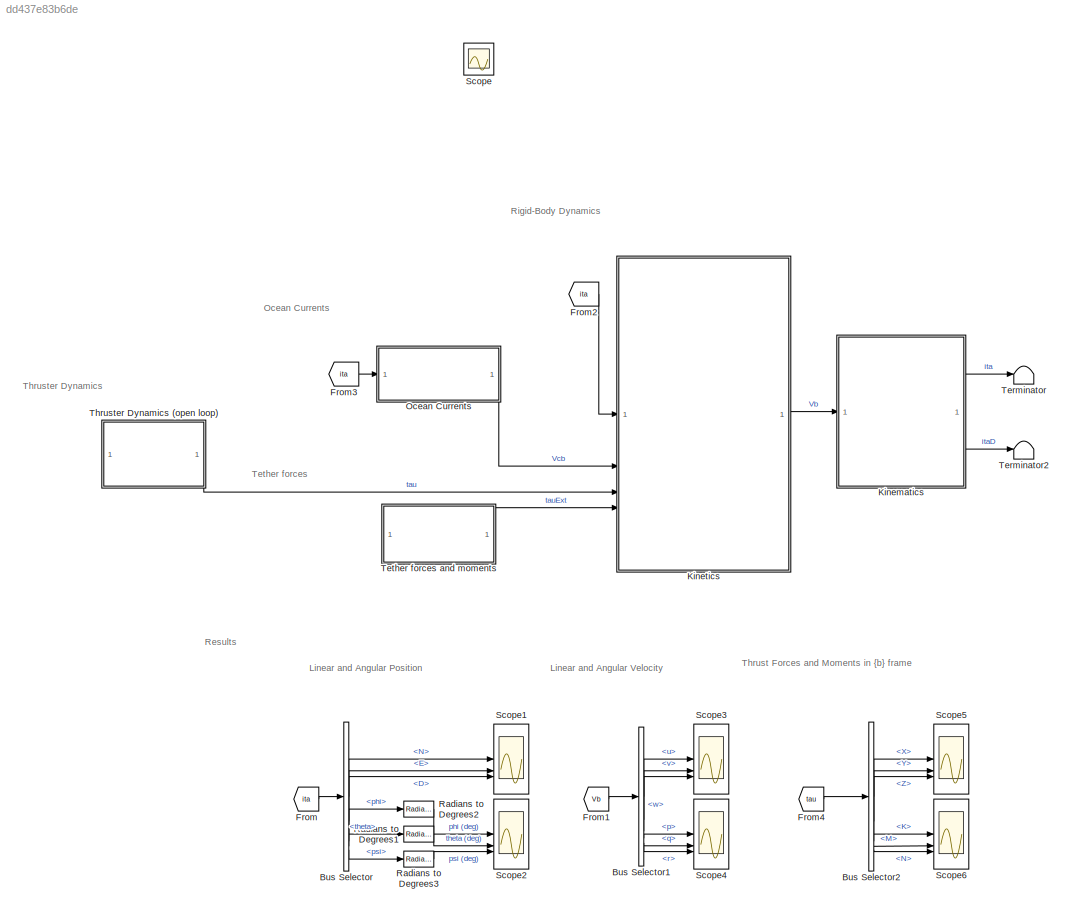
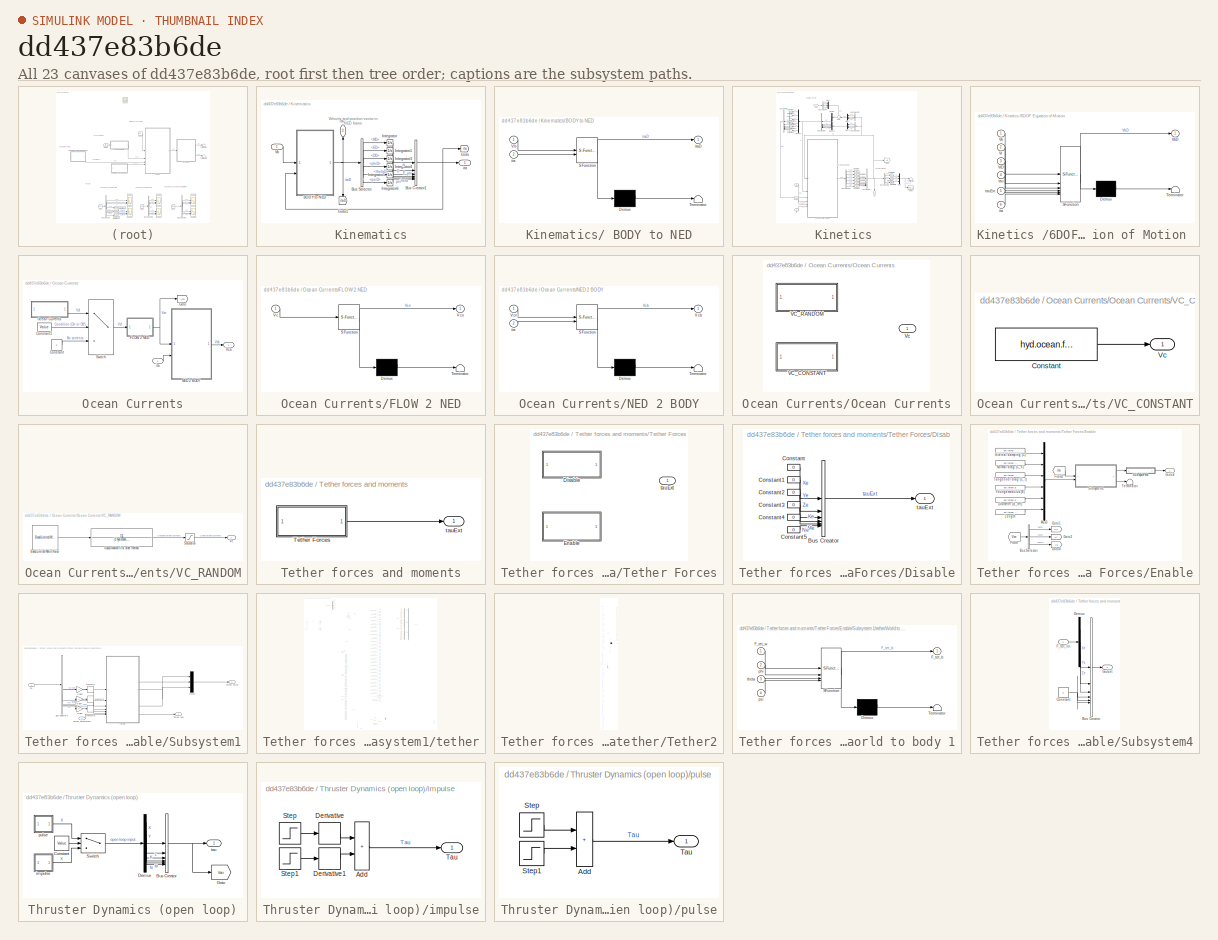
[diagram: thumbnail index - all 23 canvases of the model, root first then tree order]
MODEL slx_dd437e83b6de
KIND model
CONFIG AbsTol = auto
CONFIG EnableMultiTasking = off
CONFIG FixedStep = 0.01
CONFIG MaxStep = 0.001
CONFIG MinStep = 0.00001
CONFIG RelTol = 1e-3
CONFIG SampleTimeConstraint = Unconstrained
CONFIG SolverName = ode45
CONFIG StartTime = 0.0
CONFIG StopTime = Sim.ts
BLOCK [BusSelector] Bus Selector
  OutputSignals = N,E,D,phi,theta,psi
BLOCK [BusSelector] Bus Selector1
  OutputSignals = u,v,w,p,q,r
BLOCK [BusSelector] Bus Selector2
  OutputSignals = X,Y,Z,K,M,N
BLOCK [From] From
  GotoTag = ita
  TagVisibility = global
BLOCK [From] From1
  GotoTag = Vb
  TagVisibility = global
BLOCK [From] From2
  GotoTag = ita
  TagVisibility = global
BLOCK [From] From3
  GotoTag = ita
  TagVisibility = global
BLOCK [From] From4
  GotoTag = tau
  TagVisibility = global
BLOCK [SubSystem] Kinematics
BLOCK [SubSystem] Kinematics/ BODY to NED
  ErrorFcn = Stateflow.Translate.translate
  LibrarySourceBlock = simulink/User-Defined\nFunctions/MATLAB Function
  PermitHierarchicalResolution = ExplicitOnly
  SFBlockType = MATLAB Function
  TreatAsAtomicUnit = on
BLOCK [Demux] Kinematics/ BODY to NED/ Demux 
  Outputs = 1
BLOCK [S-Function] Kinematics/ BODY to NED/ SFunction 
  EnableBusSupport = on
  FunctionName = sf_sfun
  PortCounts = [2 2]
  SFcnIsStateOwnerBlock = off
  SFunctionDeploymentMode = off
  Tag = Stateflow S-Function 1
BLOCK [Terminator] Kinematics/ BODY to NED/ Terminator 
BLOCK [Inport] Kinematics/ BODY to NED/Vb
BLOCK [Inport] Kinematics/ BODY to NED/ita
  Port = 2
BLOCK [Outport] Kinematics/ BODY to NED/itaD
BLOCK [BusCreator] Kinematics/Bus Creator1
  DisplayOption = bar
  InheritFromInputs = on
  Inputs = 6
  OutDataTypeStr = Bus: ita
BLOCK [BusSelector] Kinematics/Bus Selector
  OutputSignals = ND,ED,DD,phiD,thetaD,psiD
BLOCK [Goto] Kinematics/Goto
  GotoTag = ita
  TagVisibility = global
BLOCK [Goto] Kinematics/Goto1
  GotoTag = itaD
  NameLocation = left
  TagVisibility = global
BLOCK [Integrator] Kinematics/Integrator
  InitialCondition = North
  LowerSaturationLimit = ics.N
BLOCK [Integrator] Kinematics/Integrator1
  InitialCondition = East
  LowerSaturationLimit = ics.E
BLOCK [Integrator] Kinematics/Integrator3
  InitialCondition = Down
  LowerSaturationLimit = ics.D
BLOCK [Integrator] Kinematics/Integrator4
  InitialCondition = Roll
  LowerSaturationLimit = ics.phi
BLOCK [Integrator] Kinematics/Integrator5
  InitialCondition = Pitch
  LowerSaturationLimit = ics.theta
BLOCK [Integrator] Kinematics/Integrator6
  InitialCondition = InitialCondition
  LowerSaturationLimit = ics.psi
BLOCK [Inport] Kinematics/Vb
  OutDataTypeStr = Bus: Vb
BLOCK [Outport] Kinematics/ita
  OutDataTypeStr = Bus: ita
BLOCK [Outport] Kinematics/itaD
  NameLocation = top
  OutDataTypeStr = Bus: itaD
  Port = 2
BLOCK [SubSystem] Kinetics 
BLOCK [SubSystem] Kinetics /6DOF Equation of Motion 
  ErrorFcn = Stateflow.Translate.translate
  LibrarySourceBlock = simulink/User-Defined\nFunctions/MATLAB Function
  PermitHierarchicalResolution = ExplicitOnly
  SFBlockType = MATLAB Function
  TreatAsAtomicUnit = on
BLOCK [Demux] Kinetics /6DOF Equation of Motion / Demux 
  Outputs = 1
BLOCK [S-Function] Kinetics /6DOF Equation of Motion / SFunction 
  EnableBusSupport = on
  FunctionName = sf_sfun
  Parameters = hyd,phy,rb
  PortCounts = [6 2]
  SFcnIsStateOwnerBlock = off
  SFunctionDeploymentMode = off
  Tag = Stateflow S-Function 3
BLOCK [Terminator] Kinetics /6DOF Equation of Motion / Terminator 
BLOCK [Inport] Kinetics /6DOF Equation of Motion /Vb
BLOCK [Outport] Kinetics /6DOF Equation of Motion /VbD
BLOCK [Inport] Kinetics /6DOF Equation of Motion /Vr
  Port = 2
BLOCK [Inport] Kinetics /6DOF Equation of Motion /VrD
  Port = 3
BLOCK [Inport] Kinetics /6DOF Equation of Motion /ita
  Port = 6
BLOCK [Inport] Kinetics /6DOF Equation of Motion /tau
  Port = 4
BLOCK [Inport] Kinetics /6DOF Equation of Motion /tauExt
  Port = 5
BLOCK [BusCreator] Kinetics /Bus Creator
  DisplayOption = bar
  InheritFromInputs = on
  Inputs = 6
  OutDataTypeStr = Bus: Vb
BLOCK [BusCreator] Kinetics /Bus Creator1
  DisplayOption = bar
  InheritFromInputs = on
  Inputs = 6
  NameLocation = top
  OutDataTypeStr = Bus: Vr
BLOCK [BusCreator] Kinetics /Bus Creator2
  DisplayOption = bar
  InheritFromInputs = on
  Inputs = 6
  NameLocation = top
  OutDataTypeStr = Bus: VrD
BLOCK [BusSelector] Kinetics /Bus Selector
  OutputSignals = uc,vc,wc
BLOCK [BusSelector] Kinetics /Bus Selector1
  NameLocation = top
  OutputSignals = u,v,w
BLOCK [BusSelector] Kinetics /Bus Selector2
  OutputSignals = uD,vD,wD,pD,qD,rD
BLOCK [BusSelector] Kinetics /Bus Selector3
  NameLocation = top
  OutputSignals = p,q,r
BLOCK [BusSelector] Kinetics /Bus Selector4
  OutputSignals = u,v,w
BLOCK [Demux] Kinetics /Demux
  NameLocation = top
  Outputs = 3
BLOCK [Demux] Kinetics /Demux1
  NameLocation = top
  Outputs = 6
BLOCK [Demux] Kinetics /Demux2
  NameLocation = top
  Outputs = 3
BLOCK [Derivative] Kinetics /Derivative
  NameLocation = top
BLOCK [Derivative] Kinetics /Derivative1
  NameLocation = top
BLOCK [Derivative] Kinetics /Derivative2
  NameLocation = top
BLOCK [Derivative] Kinetics /Derivative3
  NameLocation = top
BLOCK [Derivative] Kinetics /Derivative4
  NameLocation = top
BLOCK [Derivative] Kinetics /Derivative5
  NameLocation = top
BLOCK [Goto] Kinetics /Goto
  GotoTag = Vb
  TagVisibility = global
BLOCK [Goto] Kinetics /Goto1
  GotoTag = Pos_b
  TagVisibility = global
BLOCK [Integrator] Kinetics /Integrator
  InitialCondition = u_b
  LowerSaturationLimit = 0
  UpperSaturationLimit = ics.sat.umax
BLOCK [Integrator] Kinetics /Integrator1
  InitialCondition = v_b
  LowerSaturationLimit = 0
  UpperSaturationLimit = ics.sat.vmax
BLOCK [Integrator] Kinetics /Integrator2
  InitialCondition = w_b
  LowerSaturationLimit = 0
  UpperSaturationLimit = ics.sat.wmax
BLOCK [Integrator] Kinetics /Integrator3
  InitialCondition = p_b
  LowerSaturationLimit = 0
  UpperSaturationLimit = ics.sat.pmax
BLOCK [Integrator] Kinetics /Integrator4
  InitialCondition = q_b
  LowerSaturationLimit = 0
  UpperSaturationLimit = ics.sat.qmax
BLOCK [Integrator] Kinetics /Integrator5
  InitialCondition = r_b
  LowerSaturationLimit = 0
  UpperSaturationLimit = ics.sat.rmax
BLOCK [Integrator] Kinetics /Integrator6
  LowerSaturationLimit = 0
BLOCK [Integrator] Kinetics /Integrator7
  LowerSaturationLimit = 0
BLOCK [Integrator] Kinetics /Integrator8
  LowerSaturationLimit = 0
BLOCK [Mux] Kinetics /Mux
  DisplayOption = bar
  Inputs = 3
BLOCK [Mux] Kinetics /Mux1
  DisplayOption = bar
  Inputs = 3
BLOCK [Mux] Kinetics /Mux2
  DisplayOption = bar
  Inputs = 3
  NameLocation = top
BLOCK [Mux] Kinetics /Mux3
  DisplayOption = bar
  Inputs = 3
  NameLocation = top
BLOCK [Sum] Kinetics /Sum
  Inputs = -+|
  NameLocation = top
BLOCK [Terminator] Kinetics /Terminator
BLOCK [Outport] Kinetics /Vb
  NameLocation = left
  OutDataTypeStr = Bus: Vb
BLOCK [Inport] Kinetics /Vcb
  OutDataTypeStr = Bus: Vcb
  Port = 2
BLOCK [Inport] Kinetics /ita
  OutDataTypeStr = Bus: ita
BLOCK [Inport] Kinetics /tau
  OutDataTypeStr = Bus: tau
  Port = 3
BLOCK [Inport] Kinetics /tauExt
  OutDataTypeStr = Bus: tauExt
  Port = 4
BLOCK [SubSystem] Ocean Currents
BLOCK [Constant] Ocean Currents/Constant
  Value = 0
BLOCK [Constant] Ocean Currents/Constant1
  Value = Value
BLOCK [SubSystem] Ocean Currents/FLOW 2 NED
  ErrorFcn = Stateflow.Translate.translate
  LibrarySourceBlock = simulink/User-Defined\nFunctions/MATLAB Function
  PermitHierarchicalResolution = ExplicitOnly
  SFBlockType = MATLAB Function
  TreatAsAtomicUnit = on
BLOCK [Demux] Ocean Currents/FLOW 2 NED/ Demux 
  Outputs = 1
BLOCK [S-Function] Ocean Currents/FLOW 2 NED/ SFunction 
  EnableBusSupport = on
  FunctionName = sf_sfun
  Parameters = hyd
  PortCounts = [1 2]
  SFcnIsStateOwnerBlock = off
  SFunctionDeploymentMode = off
  Tag = Stateflow S-Function 2
BLOCK [Terminator] Ocean Currents/FLOW 2 NED/ Terminator 
BLOCK [Inport] Ocean Currents/FLOW 2 NED/Vc
BLOCK [Outport] Ocean Currents/FLOW 2 NED/Vcn
BLOCK [Goto] Ocean Currents/Goto
  GotoTag = Vcn
  TagVisibility = global
BLOCK [SubSystem] Ocean Currents/NED 2 BODY
  ErrorFcn = Stateflow.Translate.translate
  LibrarySourceBlock = simulink/User-Defined\nFunctions/MATLAB Function
  PermitHierarchicalResolution = ExplicitOnly
  SFBlockType = MATLAB Function
  TreatAsAtomicUnit = on
BLOCK [Demux] Ocean Currents/NED 2 BODY/ Demux 
  Outputs = 1
BLOCK [S-Function] Ocean Currents/NED 2 BODY/ SFunction 
  EnableBusSupport = on
  FunctionName = sf_sfun
  PortCounts = [2 2]
  SFcnIsStateOwnerBlock = off
  SFunctionDeploymentMode = off
  Tag = Stateflow S-Function 4
BLOCK [Terminator] Ocean Currents/NED 2 BODY/ Terminator 
BLOCK [Outport] Ocean Currents/NED 2 BODY/Vcb
BLOCK [Inport] Ocean Currents/NED 2 BODY/Vcn
BLOCK [Inport] Ocean Currents/NED 2 BODY/ita
  Port = 2
BLOCK [SubSystem] Ocean Currents/Ocean Currents
  Variant = on
BLOCK [SubSystem] Ocean Currents/Ocean Currents/VC_CONSTANT
  VariantControl = VC_CONSTANT
BLOCK [Constant] Ocean Currents/Ocean Currents/VC_CONSTANT/Constant
  Value = hyd.ocean.flow.constant
BLOCK [Outport] Ocean Currents/Ocean Currents/VC_CONSTANT/Vc
BLOCK [SubSystem] Ocean Currents/Ocean Currents/VC_RANDOM
  VariantControl = VC_RANDOM
BLOCK [Reference] Ocean Currents/Ocean Currents/VC_RANDOM/Band-Limited White Noise  REF=simulink/Sources/Band-Limited
White Noise
  SourceBlock = simulink/Sources/Band-Limited\nWhite Noise
  SourceType = Band-Limited White Noise.
BLOCK [TransferFcn] Ocean Currents/Ocean Currents/VC_RANDOM/Gauss-Markov first order method
  Denominator = [1 hyd.ocean.flow.varying.mu]
BLOCK [Saturate] Ocean Currents/Ocean Currents/VC_RANDOM/Saturation
  LowerLimit = hyd.ocean.flow.varying.Vmin
  UpperLimit = hyd.ocean.flow.varying.Vmax
BLOCK [Outport] Ocean Currents/Ocean Currents/VC_RANDOM/Vc
BLOCK [Outport] Ocean Currents/Ocean Currents/Vc
BLOCK [Switch] Ocean Currents/Switch
  Criteria = u2 > Threshold
  InputSameDT = off
  SaturateOnIntegerOverflow = off
BLOCK [Outport] Ocean Currents/Vcb
  OutDataTypeStr = Bus: Vcb
BLOCK [Inport] Ocean Currents/ita
  OutDataTypeStr = Bus: ita
BLOCK [Reference] Radians to Degrees1  REF=simulink_extras/Transformations/Radians
to Degrees
  SourceBlock = simulink_extras/Transformations/Radians\nto Degrees
  SourceType = RadiansToDegrees
BLOCK [Reference] Radians to Degrees2  REF=simulink_extras/Transformations/Radians
to Degrees
  SourceBlock = simulink_extras/Transformations/Radians\nto Degrees
  SourceType = RadiansToDegrees
BLOCK [Reference] Radians to Degrees3  REF=simulink_extras/Transformations/Radians
to Degrees
  SourceBlock = simulink_extras/Transformations/Radians\nto Degrees
  SourceType = RadiansToDegrees
BLOCK [Scope] Scope
  Floating = off
  IOType = viewer
  NumInputPorts = 1
  ScopeSpecificationString = Simulink.scopes.TimeScopeBlockCfg('CurrentConfiguration', extmgr.ConfigurationSet(extmgr.Configuration('Core','General UI',true),extmgr.Configuration('Core','Source UI',true),extmgr.Configuration('Sources','WiredSimulink',true),extmgr.Configuration('Visuals','Time Domain',true,'SerializedDisplays',{struct('MinYLimReal','-10.00000','MaxYLimReal','10.00000','YLabelReal','','MinYLimMag','0.00000','Ma...<+1368ch>
BLOCK [Scope] Scope1
  Floating = off
  NumInputPorts = 3
  ScopeSpecificationString = Simulink.scopes.TimeScopeBlockCfg('CurrentConfiguration', extmgr.ConfigurationSet(extmgr.Configuration('Core','General UI',true),extmgr.Configuration('Core','Source UI',true),extmgr.Configuration('Sources','WiredSimulink',true,'DataLoggingVariableName','ScopeData1'),extmgr.Configuration('Visuals','Time Domain',true,'SerializedDisplays',{struct('MinYLimReal','-3.125','MaxYLimReal','28.125','YLabelR...<+1627ch>
BLOCK [Scope] Scope2
  Floating = off
  NumInputPorts = 3
  ScopeSpecificationString = Simulink.scopes.TimeScopeBlockCfg('CurrentConfiguration', extmgr.ConfigurationSet(extmgr.Configuration('Core','General UI',true),extmgr.Configuration('Core','Source UI',true),extmgr.Configuration('Sources','WiredSimulink',true,'DataLoggingVariableName','ScopeData2'),extmgr.Configuration('Visuals','Time Domain',true,'SerializedDisplays',{struct('MinYLimReal','-1.16523','MaxYLimReal','0.12955','YLab...<+1610ch>
BLOCK [Scope] Scope3
  Floating = off
  NumInputPorts = 3
  ScopeSpecificationString = Simulink.scopes.TimeScopeBlockCfg('CurrentConfiguration', extmgr.ConfigurationSet(extmgr.Configuration('Core','General UI',true),extmgr.Configuration('Core','Source UI',true),extmgr.Configuration('Sources','WiredSimulink',true,'DataLoggingVariableName','ScopeData3'),extmgr.Configuration('Visuals','Time Domain',true,'SerializedDisplays',{struct('MinYLimReal','-0.33978','MaxYLimReal','0.03775','YLab...<+1568ch>
BLOCK [Scope] Scope4
  Floating = off
  NumInputPorts = 3
  ScopeSpecificationString = Simulink.scopes.TimeScopeBlockCfg('CurrentConfiguration', extmgr.ConfigurationSet(extmgr.Configuration('Core','General UI',true),extmgr.Configuration('Core','Source UI',true),extmgr.Configuration('Sources','WiredSimulink',true,'DataLoggingVariableName','ScopeData4'),extmgr.Configuration('Visuals','Time Domain',true,'SerializedDisplays',{struct('MinYLimReal','-0.00814','MaxYLimReal','0.01176','YLab...<+1506ch>
BLOCK [Scope] Scope5
  Floating = off
  NumInputPorts = 3
  ScopeSpecificationString = Simulink.scopes.TimeScopeBlockCfg('CurrentConfiguration', extmgr.ConfigurationSet(extmgr.Configuration('Core','General UI',true),extmgr.Configuration('Core','Source UI',true),extmgr.Configuration('Sources','WiredSimulink',true,'DataLoggingVariableName','ScopeData1'),extmgr.Configuration('Visuals','Time Domain',true,'SerializedDisplays',{struct('MinYLimReal','-1.00000','MaxYLimReal','1.00000','YLab...<+1558ch>
BLOCK [Scope] Scope6
  Floating = off
  NumInputPorts = 3
  ScopeSpecificationString = Simulink.scopes.TimeScopeBlockCfg('CurrentConfiguration', extmgr.ConfigurationSet(extmgr.Configuration('Core','General UI',true),extmgr.Configuration('Core','Source UI',true),extmgr.Configuration('Sources','WiredSimulink',true,'DataLoggingVariableName','ScopeData2'),extmgr.Configuration('Visuals','Time Domain',true,'SerializedDisplays',{struct('MinYLimReal','-1.00000','MaxYLimReal','1.00000','YLab...<+1550ch>
BLOCK [Terminator] Terminator
BLOCK [Terminator] Terminator2
BLOCK [SubSystem] Tether forces and moments
BLOCK [SubSystem] Tether forces and moments/Tether Forces
  Variant = on
BLOCK [SubSystem] Tether forces and moments/Tether Forces/Disable
  VariantControl = TETHER_DISABLE
BLOCK [BusCreator] Tether forces and moments/Tether Forces/Disable/Bus Creator
  DisplayOption = bar
  InheritFromInputs = on
  Inputs = 6
  OutDataTypeStr = Bus: tauExt
BLOCK [Constant] Tether forces and moments/Tether Forces/Disable/Constant
  Value = 0
BLOCK [Constant] Tether forces and moments/Tether Forces/Disable/Constant1
  Value = 0
BLOCK [Constant] Tether forces and moments/Tether Forces/Disable/Constant2
  Value = 0
BLOCK [Constant] Tether forces and moments/Tether Forces/Disable/Constant3
  Value = 0
BLOCK [Constant] Tether forces and moments/Tether Forces/Disable/Constant4
  Value = 0
BLOCK [Constant] Tether forces and moments/Tether Forces/Disable/Constant5
  Value = 0
BLOCK [Outport] Tether forces and moments/Tether Forces/Disable/tauExt
  OutDataTypeStr = Bus: tauExt
BLOCK [SubSystem] Tether forces and moments/Tether Forces/Enable
  VariantControl = TETHER_ENABLE
BLOCK [BusSelector] Tether forces and moments/Tether Forces/Enable/Bus Selector
  OutputSignals = ucn,vcn,wcn
BLOCK [Constant] Tether forces and moments/Tether Forces/Enable/Diameter (d_tet)
  Value = ext.tether.d
BLOCK [From] Tether forces and moments/Tether Forces/Enable/From
  GotoTag = Vcn
  TagVisibility = global
BLOCK [From] Tether forces and moments/Tether Forces/Enable/From1
  GotoTag = ita
  TagVisibility = global
BLOCK [Goto] Tether forces and moments/Tether Forces/Enable/Goto1
  GotoTag = Ux
  TagVisibility = global
BLOCK [Goto] Tether forces and moments/Tether Forces/Enable/Goto2
  GotoTag = Uy
  TagVisibility = global
BLOCK [Goto] Tether forces and moments/Tether Forces/Enable/Goto4
  GotoTag = Uz
  TagVisibility = global
BLOCK [Constant] Tether forces and moments/Tether Forces/Enable/Internal damping (C)
  Value = ext.tether.Cint
BLOCK [Constant] Tether forces and moments/Tether Forces/Enable/Length
  Value = ext.tether.lc
BLOCK [Mux] Tether forces and moments/Tether Forces/Enable/Mux3
  DisplayOption = bar
  Inputs = 6
BLOCK [Constant] Tether forces and moments/Tether Forces/Enable/Normal drag (C_n)
  Value = ext.tether.Cn
BLOCK [SubSystem] Tether forces and moments/Tether Forces/Enable/Subsystem1
BLOCK [BusSelector] Tether forces and moments/Tether Forces/Enable/Subsystem1/Bus Selector4
  OutputSignals = phi,theta,psi,N,E,D
BLOCK [Gain] Tether forces and moments/Tether Forces/Enable/Subsystem1/Gain3
BLOCK [Gain] Tether forces and moments/Tether Forces/Enable/Subsystem1/Gain4
BLOCK [Gain] Tether forces and moments/Tether Forces/Enable/Subsystem1/Gain5
BLOCK [Memory] Tether forces and moments/Tether Forces/Enable/Subsystem1/Memory1
  InitialCondition = P10(1)
BLOCK [Memory] Tether forces and moments/Tether Forces/Enable/Subsystem1/Memory2
  InitialCondition = P10(2)
BLOCK [Memory] Tether forces and moments/Tether Forces/Enable/Subsystem1/Memory3
  InitialCondition = P10(3)
  NameLocation = top
BLOCK [Mux] Tether forces and moments/Tether Forces/Enable/Subsystem1/Mux10
  DisplayOption = bar
  Inputs = 3
BLOCK [Outport] Tether forces and moments/Tether Forces/Enable/Subsystem1/Tether Force
BLOCK [Outport] Tether forces and moments/Tether Forces/Enable/Subsystem1/Tether pos
  Port = 2
BLOCK [Inport] Tether forces and moments/Tether Forces/Enable/Subsystem1/Tether_Parameters
  Port = 2
BLOCK [Inport] Tether forces and moments/Tether Forces/Enable/Subsystem1/ita
  OutDataTypeStr = Bus: ita
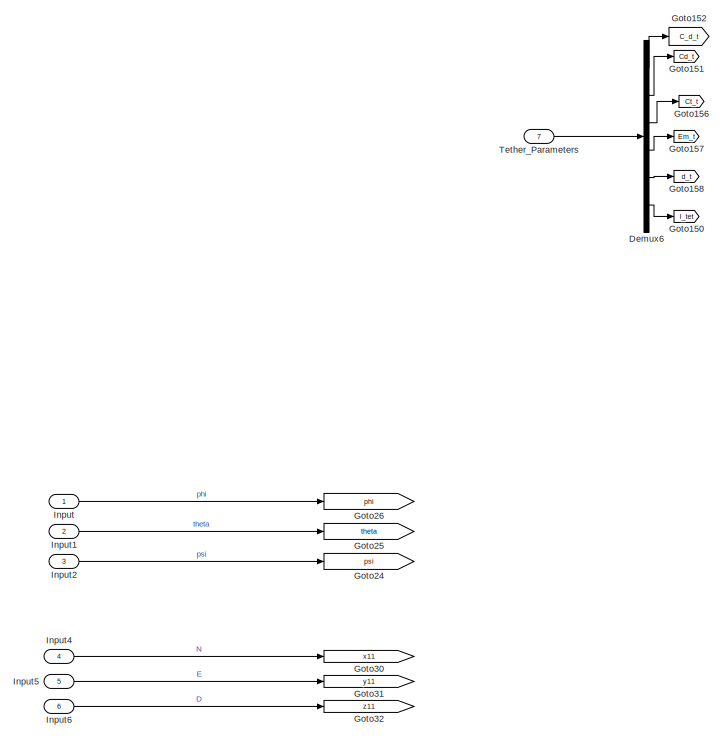
[diagram: Tether forces and moments/Tether Forces/Enable/Subsystem1/tether - part 1/9, top left region]
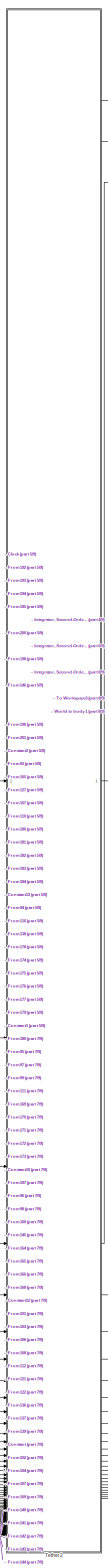
[diagram: Tether forces and moments/Tether Forces/Enable/Subsystem1/tether - part 2/9, center side, full height]
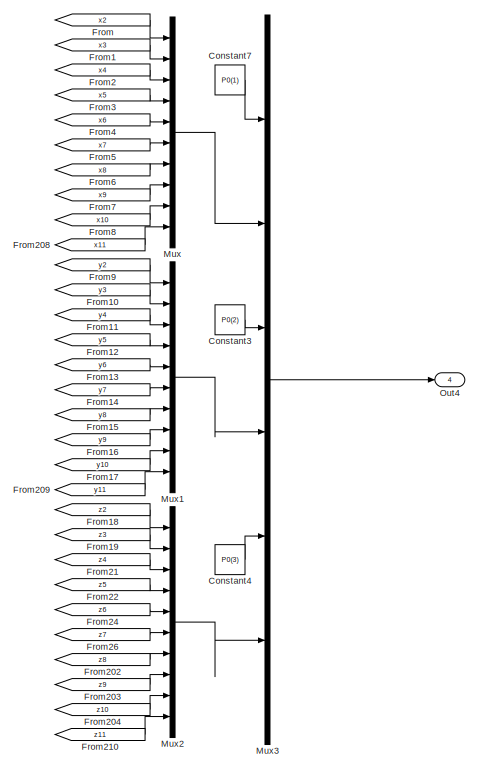
[diagram: Tether forces and moments/Tether Forces/Enable/Subsystem1/tether - part 3/9, top right region]
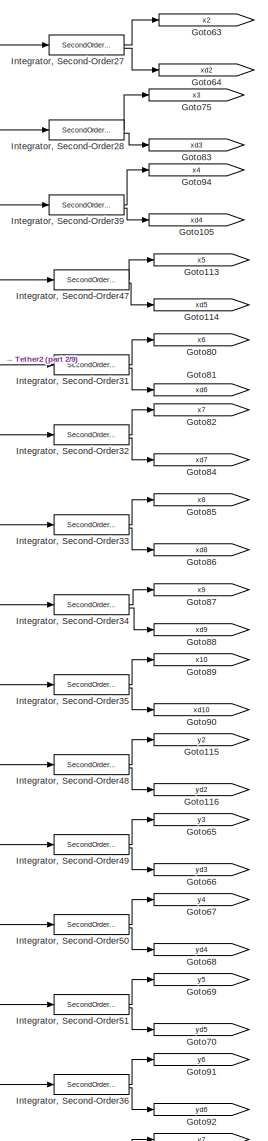
[diagram: Tether forces and moments/Tether Forces/Enable/Subsystem1/tether - part 4/9, top center region]
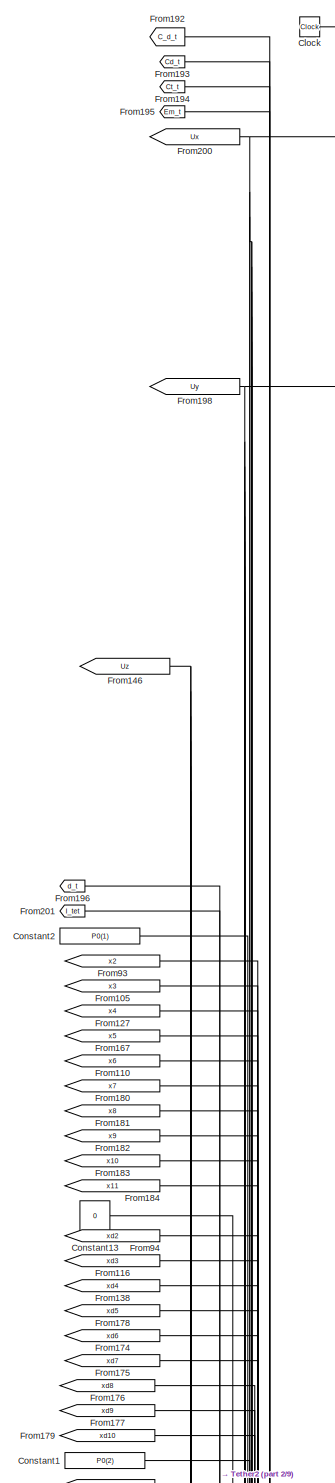
[diagram: Tether forces and moments/Tether Forces/Enable/Subsystem1/tether - part 5/9, central region]
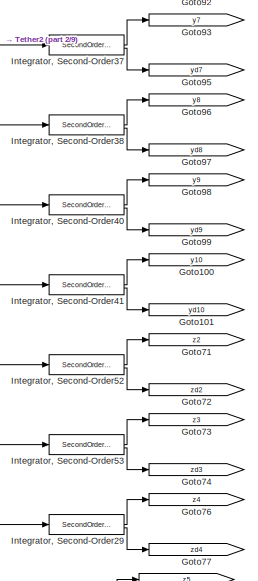
[diagram: Tether forces and moments/Tether Forces/Enable/Subsystem1/tether - part 6/9, central region]
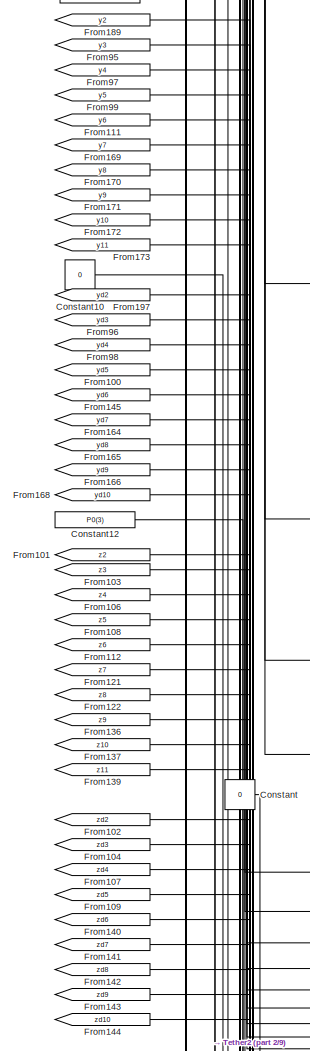
[diagram: Tether forces and moments/Tether Forces/Enable/Subsystem1/tether - part 7/9, bottom left region]
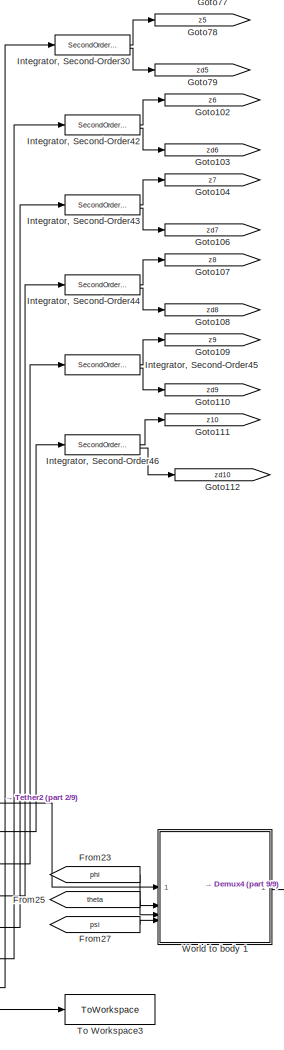
[diagram: Tether forces and moments/Tether Forces/Enable/Subsystem1/tether - part 8/9, bottom center region]
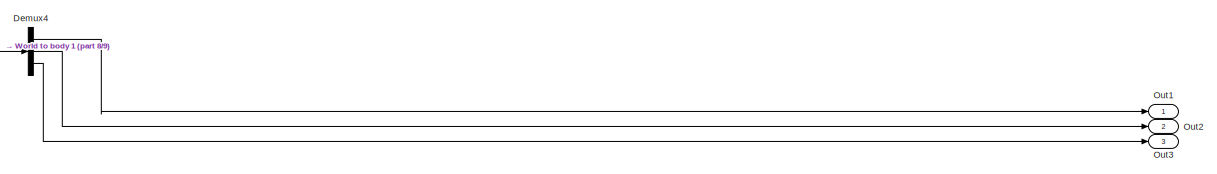
[diagram: Tether forces and moments/Tether Forces/Enable/Subsystem1/tether - part 9/9, bottom right region]
BLOCK [SubSystem] Tether forces and moments/Tether Forces/Enable/Subsystem1/tether
BLOCK [Clock] Tether forces and moments/Tether Forces/Enable/Subsystem1/tether/Clock
BLOCK [Constant] Tether forces and moments/Tether Forces/Enable/Subsystem1/tether/Constant
  Value = 0
BLOCK [Constant] Tether forces and moments/Tether Forces/Enable/Subsystem1/tether/Constant1
  Value = P0(2)
BLOCK [Constant] Tether forces and moments/Tether Forces/Enable/Subsystem1/tether/Constant10
  Value = 0
BLOCK [Constant] Tether forces and moments/Tether Forces/Enable/Subsystem1/tether/Constant12
  Value = P0(3)
BLOCK [Constant] Tether forces and moments/Tether Forces/Enable/Subsystem1/tether/Constant13
  Value = 0
BLOCK [Constant] Tether forces and moments/Tether Forces/Enable/Subsystem1/tether/Constant2
  Value = P0(1)
BLOCK [Constant] Tether forces and moments/Tether Forces/Enable/Subsystem1/tether/Constant3
  Value = P0(2)
BLOCK [Constant] Tether forces and moments/Tether Forces/Enable/Subsystem1/tether/Constant4
  Value = P0(3)
BLOCK [Constant] Tether forces and moments/Tether Forces/Enable/Subsystem1/tether/Constant7
  Value = P0(1)
BLOCK [Demux] Tether forces and moments/Tether Forces/Enable/Subsystem1/tether/Demux4
  Outputs = 3
BLOCK [Demux] Tether forces and moments/Tether Forces/Enable/Subsystem1/tether/Demux6
  Outputs = 6
BLOCK [From] Tether forces and moments/Tether Forces/Enable/Subsystem1/tether/From
  GotoTag = x2
  TagVisibility = global
BLOCK [From] Tether forces and moments/Tether Forces/Enable/Subsystem1/tether/From1
  GotoTag = x3
  TagVisibility = global
BLOCK [From] Tether forces and moments/Tether Forces/Enable/Subsystem1/tether/From10
  GotoTag = y3
  TagVisibility = global
BLOCK [From] Tether forces and moments/Tether Forces/Enable/Subsystem1/tether/From100
  GotoTag = yd5
  TagVisibility = global
BLOCK [From] Tether forces and moments/Tether Forces/Enable/Subsystem1/tether/From101
  GotoTag = z2
  TagVisibility = global
BLOCK [From] Tether forces and moments/Tether Forces/Enable/Subsystem1/tether/From102
  GotoTag = zd2
  TagVisibility = global
BLOCK [From] Tether forces and moments/Tether Forces/Enable/Subsystem1/tether/From103
  GotoTag = z3
  TagVisibility = global
BLOCK [From] Tether forces and moments/Tether Forces/Enable/Subsystem1/tether/From104
  GotoTag = zd3
  TagVisibility = global
BLOCK [From] Tether forces and moments/Tether Forces/Enable/Subsystem1/tether/From105
  GotoTag = x3
  TagVisibility = global
BLOCK [From] Tether forces and moments/Tether Forces/Enable/Subsystem1/tether/From106
  GotoTag = z4
  TagVisibility = global
BLOCK [From] Tether forces and moments/Tether Forces/Enable/Subsystem1/tether/From107
  GotoTag = zd4
  TagVisibility = global
BLOCK [From] Tether forces and moments/Tether Forces/Enable/Subsystem1/tether/From108
  GotoTag = z5
  TagVisibility = global
BLOCK [From] Tether forces and moments/Tether Forces/Enable/Subsystem1/tether/From109
  GotoTag = zd5
  TagVisibility = global
BLOCK [From] Tether forces and moments/Tether Forces/Enable/Subsystem1/tether/From11
  GotoTag = y4
  TagVisibility = global
BLOCK [From] Tether forces and moments/Tether Forces/Enable/Subsystem1/tether/From110
  GotoTag = x6
  TagVisibility = global
BLOCK [From] Tether forces and moments/Tether Forces/Enable/Subsystem1/tether/From111
  GotoTag = y6
  TagVisibility = global
BLOCK [From] Tether forces and moments/Tether Forces/Enable/Subsystem1/tether/From112
  GotoTag = z6
  TagVisibility = global
BLOCK [From] Tether forces and moments/Tether Forces/Enable/Subsystem1/tether/From116
  GotoTag = xd3
  TagVisibility = global
BLOCK [From] Tether forces and moments/Tether Forces/Enable/Subsystem1/tether/From12
  GotoTag = y5
  TagVisibility = global
BLOCK [From] Tether forces and moments/Tether Forces/Enable/Subsystem1/tether/From121
  GotoTag = z7
  TagVisibility = global
BLOCK [From] Tether forces and moments/Tether Forces/Enable/Subsystem1/tether/From122
  GotoTag = z8
  TagVisibility = global
BLOCK [From] Tether forces and moments/Tether Forces/Enable/Subsystem1/tether/From127
  GotoTag = x4
  TagVisibility = global
BLOCK [From] Tether forces and moments/Tether Forces/Enable/Subsystem1/tether/From13
  GotoTag = y6
  TagVisibility = global
BLOCK [From] Tether forces and moments/Tether Forces/Enable/Subsystem1/tether/From136
  GotoTag = z9
  TagVisibility = global
BLOCK [From] Tether forces and moments/Tether Forces/Enable/Subsystem1/tether/From137
  GotoTag = z10
  TagVisibility = global
BLOCK [From] Tether forces and moments/Tether Forces/Enable/Subsystem1/tether/From138
  GotoTag = xd4
  TagVisibility = global
BLOCK [From] Tether forces and moments/Tether Forces/Enable/Subsystem1/tether/From139
  GotoTag = z11
  TagVisibility = global
BLOCK [From] Tether forces and moments/Tether Forces/Enable/Subsystem1/tether/From14
  GotoTag = y7
  TagVisibility = global
BLOCK [From] Tether forces and moments/Tether Forces/Enable/Subsystem1/tether/From140
  GotoTag = zd6
  TagVisibility = global
BLOCK [From] Tether forces and moments/Tether Forces/Enable/Subsystem1/tether/From141
  GotoTag = zd7
  TagVisibility = global
BLOCK [From] Tether forces and moments/Tether Forces/Enable/Subsystem1/tether/From142
  GotoTag = zd8
  TagVisibility = global
BLOCK [From] Tether forces and moments/Tether Forces/Enable/Subsystem1/tether/From143
  GotoTag = zd9
  TagVisibility = global
BLOCK [From] Tether forces and moments/Tether Forces/Enable/Subsystem1/tether/From144
  GotoTag = zd10
  TagVisibility = global
BLOCK [From] Tether forces and moments/Tether Forces/Enable/Subsystem1/tether/From145
  GotoTag = yd6
  TagVisibility = global
BLOCK [From] Tether forces and moments/Tether Forces/Enable/Subsystem1/tether/From146
  GotoTag = Uz
  TagVisibility = global
BLOCK [From] Tether forces and moments/Tether Forces/Enable/Subsystem1/tether/From15
  GotoTag = y8
  TagVisibility = global
BLOCK [From] Tether forces and moments/Tether Forces/Enable/Subsystem1/tether/From16
  GotoTag = y9
  TagVisibility = global
BLOCK [From] Tether forces and moments/Tether Forces/Enable/Subsystem1/tether/From164
  GotoTag = yd7
  TagVisibility = global
BLOCK [From] Tether forces and moments/Tether Forces/Enable/Subsystem1/tether/From165
  GotoTag = yd8
  TagVisibility = global
BLOCK [From] Tether forces and moments/Tether Forces/Enable/Subsystem1/tether/From166
  GotoTag = yd9
  TagVisibility = global
BLOCK [From] Tether forces and moments/Tether Forces/Enable/Subsystem1/tether/From167
  GotoTag = x5
  TagVisibility = global
BLOCK [From] Tether forces and moments/Tether Forces/Enable/Subsystem1/tether/From168
  GotoTag = yd10
  TagVisibility = global
BLOCK [From] Tether forces and moments/Tether Forces/Enable/Subsystem1/tether/From169
  GotoTag = y7
  TagVisibility = global
BLOCK [From] Tether forces and moments/Tether Forces/Enable/Subsystem1/tether/From17
  GotoTag = y10
  TagVisibility = global
BLOCK [From] Tether forces and moments/Tether Forces/Enable/Subsystem1/tether/From170
  GotoTag = y8
  TagVisibility = global
BLOCK [From] Tether forces and moments/Tether Forces/Enable/Subsystem1/tether/From171
  GotoTag = y9
  TagVisibility = global
BLOCK [From] Tether forces and moments/Tether Forces/Enable/Subsystem1/tether/From172
  GotoTag = y10
  TagVisibility = global
BLOCK [From] Tether forces and moments/Tether Forces/Enable/Subsystem1/tether/From173
  GotoTag = y11
  TagVisibility = global
BLOCK [From] Tether forces and moments/Tether Forces/Enable/Subsystem1/tether/From174
  GotoTag = xd6
  TagVisibility = global
BLOCK [From] Tether forces and moments/Tether Forces/Enable/Subsystem1/tether/From175
  GotoTag = xd7
  TagVisibility = global
BLOCK [From] Tether forces and moments/Tether Forces/Enable/Subsystem1/tether/From176
  GotoTag = xd8
  TagVisibility = global
BLOCK [From] Tether forces and moments/Tether Forces/Enable/Subsystem1/tether/From177
  GotoTag = xd9
  TagVisibility = global
BLOCK [From] Tether forces and moments/Tether Forces/Enable/Subsystem1/tether/From178
  GotoTag = xd5
  TagVisibility = global
BLOCK [From] Tether forces and moments/Tether Forces/Enable/Subsystem1/tether/From179
  GotoTag = xd10
  TagVisibility = global
BLOCK [From] Tether forces and moments/Tether Forces/Enable/Subsystem1/tether/From18
  GotoTag = z2
  TagVisibility = global
BLOCK [From] Tether forces and moments/Tether Forces/Enable/Subsystem1/tether/From180
  GotoTag = x7
  TagVisibility = global
BLOCK [From] Tether forces and moments/Tether Forces/Enable/Subsystem1/tether/From181
  GotoTag = x8
  TagVisibility = global
BLOCK [From] Tether forces and moments/Tether Forces/Enable/Subsystem1/tether/From182
  GotoTag = x9
  TagVisibility = global
BLOCK [From] Tether forces and moments/Tether Forces/Enable/Subsystem1/tether/From183
  GotoTag = x10
  TagVisibility = global
BLOCK [From] Tether forces and moments/Tether Forces/Enable/Subsystem1/tether/From184
  GotoTag = x11
  TagVisibility = global
BLOCK [From] Tether forces and moments/Tether Forces/Enable/Subsystem1/tether/From189
  GotoTag = y2
  TagVisibility = global
BLOCK [From] Tether forces and moments/Tether Forces/Enable/Subsystem1/tether/From19
  GotoTag = z3
  TagVisibility = global
BLOCK [From] Tether forces and moments/Tether Forces/Enable/Subsystem1/tether/From192
  GotoTag = C_d_t
  TagVisibility = global
BLOCK [From] Tether forces and moments/Tether Forces/Enable/Subsystem1/tether/From193
  GotoTag = Cd_t
  TagVisibility = global
BLOCK [From] Tether forces and moments/Tether Forces/Enable/Subsystem1/tether/From194
  GotoTag = Ct_t
  TagVisibility = global
BLOCK [From] Tether forces and moments/Tether Forces/Enable/Subsystem1/tether/From195
  GotoTag = Em_t
  TagVisibility = global
BLOCK [From] Tether forces and moments/Tether Forces/Enable/Subsystem1/tether/From196
  GotoTag = d_t
  TagVisibility = global
BLOCK [From] Tether forces and moments/Tether Forces/Enable/Subsystem1/tether/From197
  GotoTag = yd2
  TagVisibility = global
BLOCK [From] Tether forces and moments/Tether Forces/Enable/Subsystem1/tether/From198
  GotoTag = Uy
  TagVisibility = global
BLOCK [From] Tether forces and moments/Tether Forces/Enable/Subsystem1/tether/From2
  GotoTag = x4
  TagVisibility = global
BLOCK [From] Tether forces and moments/Tether Forces/Enable/Subsystem1/tether/From200
  GotoTag = Ux
  TagVisibility = global
BLOCK [From] Tether forces and moments/Tether Forces/Enable/Subsystem1/tether/From201
  GotoTag = I_tet
  TagVisibility = global
BLOCK [From] Tether forces and moments/Tether Forces/Enable/Subsystem1/tether/From202
  GotoTag = z8
  TagVisibility = global
BLOCK [From] Tether forces and moments/Tether Forces/Enable/Subsystem1/tether/From203
  GotoTag = z9
  TagVisibility = global
BLOCK [From] Tether forces and moments/Tether Forces/Enable/Subsystem1/tether/From204
  GotoTag = z10
  TagVisibility = global
BLOCK [From] Tether forces and moments/Tether Forces/Enable/Subsystem1/tether/From208
  GotoTag = x11
  TagVisibility = global
BLOCK [From] Tether forces and moments/Tether Forces/Enable/Subsystem1/tether/From209
  GotoTag = y11
  TagVisibility = global
BLOCK [From] Tether forces and moments/Tether Forces/Enable/Subsystem1/tether/From21
  GotoTag = z4
  TagVisibility = global
BLOCK [From] Tether forces and moments/Tether Forces/Enable/Subsystem1/tether/From210
  GotoTag = z11
  TagVisibility = global
BLOCK [From] Tether forces and moments/Tether Forces/Enable/Subsystem1/tether/From22
  GotoTag = z5
  TagVisibility = global
BLOCK [From] Tether forces and moments/Tether Forces/Enable/Subsystem1/tether/From23
  GotoTag = phi
BLOCK [From] Tether forces and moments/Tether Forces/Enable/Subsystem1/tether/From24
  GotoTag = z6
  TagVisibility = global
BLOCK [From] Tether forces and moments/Tether Forces/Enable/Subsystem1/tether/From25
  GotoTag = theta
BLOCK [From] Tether forces and moments/Tether Forces/Enable/Subsystem1/tether/From26
  GotoTag = z7
  TagVisibility = global
BLOCK [From] Tether forces and moments/Tether Forces/Enable/Subsystem1/tether/From27
  GotoTag = psi
BLOCK [From] Tether forces and moments/Tether Forces/Enable/Subsystem1/tether/From3
  GotoTag = x5
  TagVisibility = global
BLOCK [From] Tether forces and moments/Tether Forces/Enable/Subsystem1/tether/From4
  GotoTag = x6
  TagVisibility = global
BLOCK [From] Tether forces and moments/Tether Forces/Enable/Subsystem1/tether/From5
  GotoTag = x7
  TagVisibility = global
BLOCK [From] Tether forces and moments/Tether Forces/Enable/Subsystem1/tether/From6
  GotoTag = x8
  TagVisibility = global
BLOCK [From] Tether forces and moments/Tether Forces/Enable/Subsystem1/tether/From7
  GotoTag = x9
  TagVisibility = global
BLOCK [From] Tether forces and moments/Tether Forces/Enable/Subsystem1/tether/From8
  GotoTag = x10
  TagVisibility = global
BLOCK [From] Tether forces and moments/Tether Forces/Enable/Subsystem1/tether/From9
  GotoTag = y2
  TagVisibility = global
BLOCK [From] Tether forces and moments/Tether Forces/Enable/Subsystem1/tether/From93
  GotoTag = x2
  TagVisibility = global
BLOCK [From] Tether forces and moments/Tether Forces/Enable/Subsystem1/tether/From94
  GotoTag = xd2
  TagVisibility = global
BLOCK [From] Tether forces and moments/Tether Forces/Enable/Subsystem1/tether/From95
  GotoTag = y3
  TagVisibility = global
BLOCK [From] Tether forces and moments/Tether Forces/Enable/Subsystem1/tether/From96
  GotoTag = yd3
  TagVisibility = global
BLOCK [From] Tether forces and moments/Tether Forces/Enable/Subsystem1/tether/From97
  GotoTag = y4
  TagVisibility = global
BLOCK [From] Tether forces and moments/Tether Forces/Enable/Subsystem1/tether/From98
  GotoTag = yd4
  TagVisibility = global
BLOCK [From] Tether forces and moments/Tether Forces/Enable/Subsystem1/tether/From99
  GotoTag = y5
  TagVisibility = global
BLOCK [Goto] Tether forces and moments/Tether Forces/Enable/Subsystem1/tether/Goto100
  GotoTag = y10
  TagVisibility = global
BLOCK [Goto] Tether forces and moments/Tether Forces/Enable/Subsystem1/tether/Goto101
  GotoTag = yd10
  TagVisibility = global
BLOCK [Goto] Tether forces and moments/Tether Forces/Enable/Subsystem1/tether/Goto102
  GotoTag = z6
  TagVisibility = global
BLOCK [Goto] Tether forces and moments/Tether Forces/Enable/Subsystem1/tether/Goto103
  GotoTag = zd6
  TagVisibility = global
BLOCK [Goto] Tether forces and moments/Tether Forces/Enable/Subsystem1/tether/Goto104
  GotoTag = z7
  TagVisibility = global
BLOCK [Goto] Tether forces and moments/Tether Forces/Enable/Subsystem1/tether/Goto105
  GotoTag = xd4
  TagVisibility = global
BLOCK [Goto] Tether forces and moments/Tether Forces/Enable/Subsystem1/tether/Goto106
  GotoTag = zd7
  TagVisibility = global
BLOCK [Goto] Tether forces and moments/Tether Forces/Enable/Subsystem1/tether/Goto107
  GotoTag = z8
  TagVisibility = global
BLOCK [Goto] Tether forces and moments/Tether Forces/Enable/Subsystem1/tether/Goto108
  GotoTag = zd8
  TagVisibility = global
BLOCK [Goto] Tether forces and moments/Tether Forces/Enable/Subsystem1/tether/Goto109
  GotoTag = z9
  TagVisibility = global
BLOCK [Goto] Tether forces and moments/Tether Forces/Enable/Subsystem1/tether/Goto110
  GotoTag = zd9
  TagVisibility = global
BLOCK [Goto] Tether forces and moments/Tether Forces/Enable/Subsystem1/tether/Goto111
  GotoTag = z10
  TagVisibility = global
BLOCK [Goto] Tether forces and moments/Tether Forces/Enable/Subsystem1/tether/Goto112
  GotoTag = zd10
  TagVisibility = global
BLOCK [Goto] Tether forces and moments/Tether Forces/Enable/Subsystem1/tether/Goto113
  GotoTag = x5
  TagVisibility = global
BLOCK [Goto] Tether forces and moments/Tether Forces/Enable/Subsystem1/tether/Goto114
  GotoTag = xd5
  TagVisibility = global
BLOCK [Goto] Tether forces and moments/Tether Forces/Enable/Subsystem1/tether/Goto115
  GotoTag = y2
  TagVisibility = global
BLOCK [Goto] Tether forces and moments/Tether Forces/Enable/Subsystem1/tether/Goto116
  GotoTag = yd2
  TagVisibility = global
BLOCK [Goto] Tether forces and moments/Tether Forces/Enable/Subsystem1/tether/Goto150
  GotoTag = I_tet
  TagVisibility = global
BLOCK [Goto] Tether forces and moments/Tether Forces/Enable/Subsystem1/tether/Goto151
  GotoTag = Cd_t
  TagVisibility = global
BLOCK [Goto] Tether forces and moments/Tether Forces/Enable/Subsystem1/tether/Goto152
  GotoTag = C_d_t
  TagVisibility = global
BLOCK [Goto] Tether forces and moments/Tether Forces/Enable/Subsystem1/tether/Goto156
  GotoTag = Ct_t
  TagVisibility = global
BLOCK [Goto] Tether forces and moments/Tether Forces/Enable/Subsystem1/tether/Goto157
  GotoTag = Em_t
  TagVisibility = global
BLOCK [Goto] Tether forces and moments/Tether Forces/Enable/Subsystem1/tether/Goto158
  GotoTag = d_t
  TagVisibility = global
BLOCK [Goto] Tether forces and moments/Tether Forces/Enable/Subsystem1/tether/Goto24
  GotoTag = psi
BLOCK [Goto] Tether forces and moments/Tether Forces/Enable/Subsystem1/tether/Goto25
  GotoTag = theta
  NameLocation = top
BLOCK [Goto] Tether forces and moments/Tether Forces/Enable/Subsystem1/tether/Goto26
  GotoTag = phi
BLOCK [Goto] Tether forces and moments/Tether Forces/Enable/Subsystem1/tether/Goto30
  GotoTag = x11
  TagVisibility = global
BLOCK [Goto] Tether forces and moments/Tether Forces/Enable/Subsystem1/tether/Goto31
  GotoTag = y11
  TagVisibility = global
BLOCK [Goto] Tether forces and moments/Tether Forces/Enable/Subsystem1/tether/Goto32
  GotoTag = z11
  TagVisibility = global
BLOCK [Goto] Tether forces and moments/Tether Forces/Enable/Subsystem1/tether/Goto63
  GotoTag = x2
  TagVisibility = global
BLOCK [Goto] Tether forces and moments/Tether Forces/Enable/Subsystem1/tether/Goto64
  GotoTag = xd2
  TagVisibility = global
BLOCK [Goto] Tether forces and moments/Tether Forces/Enable/Subsystem1/tether/Goto65
  GotoTag = y3
  TagVisibility = global
BLOCK [Goto] Tether forces and moments/Tether Forces/Enable/Subsystem1/tether/Goto66
  GotoTag = yd3
  TagVisibility = global
BLOCK [Goto] Tether forces and moments/Tether Forces/Enable/Subsystem1/tether/Goto67
  GotoTag = y4
  TagVisibility = global
BLOCK [Goto] Tether forces and moments/Tether Forces/Enable/Subsystem1/tether/Goto68
  GotoTag = yd4
  TagVisibility = global
BLOCK [Goto] Tether forces and moments/Tether Forces/Enable/Subsystem1/tether/Goto69
  GotoTag = y5
  TagVisibility = global
BLOCK [Goto] Tether forces and moments/Tether Forces/Enable/Subsystem1/tether/Goto70
  GotoTag = yd5
  TagVisibility = global
BLOCK [Goto] Tether forces and moments/Tether Forces/Enable/Subsystem1/tether/Goto71
  GotoTag = z2
  TagVisibility = global
BLOCK [Goto] Tether forces and moments/Tether Forces/Enable/Subsystem1/tether/Goto72
  GotoTag = zd2
  TagVisibility = global
BLOCK [Goto] Tether forces and moments/Tether Forces/Enable/Subsystem1/tether/Goto73
  GotoTag = z3
  TagVisibility = global
BLOCK [Goto] Tether forces and moments/Tether Forces/Enable/Subsystem1/tether/Goto74
  GotoTag = zd3
  TagVisibility = global
BLOCK [Goto] Tether forces and moments/Tether Forces/Enable/Subsystem1/tether/Goto75
  GotoTag = x3
  TagVisibility = global
BLOCK [Goto] Tether forces and moments/Tether Forces/Enable/Subsystem1/tether/Goto76
  GotoTag = z4
  TagVisibility = global
BLOCK [Goto] Tether forces and moments/Tether Forces/Enable/Subsystem1/tether/Goto77
  GotoTag = zd4
  TagVisibility = global
BLOCK [Goto] Tether forces and moments/Tether Forces/Enable/Subsystem1/tether/Goto78
  GotoTag = z5
  TagVisibility = global
BLOCK [Goto] Tether forces and moments/Tether Forces/Enable/Subsystem1/tether/Goto79
  GotoTag = zd5
  TagVisibility = global
BLOCK [Goto] Tether forces and moments/Tether Forces/Enable/Subsystem1/tether/Goto80
  GotoTag = x6
  TagVisibility = global
BLOCK [Goto] Tether forces and moments/Tether Forces/Enable/Subsystem1/tether/Goto81
  GotoTag = xd6
  TagVisibility = global
BLOCK [Goto] Tether forces and moments/Tether Forces/Enable/Subsystem1/tether/Goto82
  GotoTag = x7
  TagVisibility = global
BLOCK [Goto] Tether forces and moments/Tether Forces/Enable/Subsystem1/tether/Goto83
  GotoTag = xd3
  TagVisibility = global
BLOCK [Goto] Tether forces and moments/Tether Forces/Enable/Subsystem1/tether/Goto84
  GotoTag = xd7
  TagVisibility = global
BLOCK [Goto] Tether forces and moments/Tether Forces/Enable/Subsystem1/tether/Goto85
  GotoTag = x8
  TagVisibility = global
BLOCK [Goto] Tether forces and moments/Tether Forces/Enable/Subsystem1/tether/Goto86
  GotoTag = xd8
  TagVisibility = global
BLOCK [Goto] Tether forces and moments/Tether Forces/Enable/Subsystem1/tether/Goto87
  GotoTag = x9
  TagVisibility = global
BLOCK [Goto] Tether forces and moments/Tether Forces/Enable/Subsystem1/tether/Goto88
  GotoTag = xd9
  TagVisibility = global
BLOCK [Goto] Tether forces and moments/Tether Forces/Enable/Subsystem1/tether/Goto89
  GotoTag = x10
  TagVisibility = global
BLOCK [Goto] Tether forces and moments/Tether Forces/Enable/Subsystem1/tether/Goto90
  GotoTag = xd10
  TagVisibility = global
BLOCK [Goto] Tether forces and moments/Tether Forces/Enable/Subsystem1/tether/Goto91
  GotoTag = y6
  TagVisibility = global
BLOCK [Goto] Tether forces and moments/Tether Forces/Enable/Subsystem1/tether/Goto92
  GotoTag = yd6
  TagVisibility = global
BLOCK [Goto] Tether forces and moments/Tether Forces/Enable/Subsystem1/tether/Goto93
  GotoTag = y7
  TagVisibility = global
BLOCK [Goto] Tether forces and moments/Tether Forces/Enable/Subsystem1/tether/Goto94
  GotoTag = x4
  TagVisibility = global
BLOCK [Goto] Tether forces and moments/Tether Forces/Enable/Subsystem1/tether/Goto95
  GotoTag = yd7
  TagVisibility = global
BLOCK [Goto] Tether forces and moments/Tether Forces/Enable/Subsystem1/tether/Goto96
  GotoTag = y8
  TagVisibility = global
BLOCK [Goto] Tether forces and moments/Tether Forces/Enable/Subsystem1/tether/Goto97
  GotoTag = yd8
  TagVisibility = global
BLOCK [Goto] Tether forces and moments/Tether Forces/Enable/Subsystem1/tether/Goto98
  GotoTag = y9
  TagVisibility = global
BLOCK [Goto] Tether forces and moments/Tether Forces/Enable/Subsystem1/tether/Goto99
  GotoTag = yd9
  TagVisibility = global
BLOCK [Inport] Tether forces and moments/Tether Forces/Enable/Subsystem1/tether/Input
  IconDisplay = Signal name
BLOCK [Inport] Tether forces and moments/Tether Forces/Enable/Subsystem1/tether/Input1
  IconDisplay = Signal name
  Port = 2
BLOCK [Inport] Tether forces and moments/Tether Forces/Enable/Subsystem1/tether/Input2
  IconDisplay = Signal name
  Port = 3
BLOCK [Inport] Tether forces and moments/Tether Forces/Enable/Subsystem1/tether/Input4
  IconDisplay = Signal name
  Port = 4
BLOCK [Inport] Tether forces and moments/Tether Forces/Enable/Subsystem1/tether/Input5
  IconDisplay = Signal name
  Port = 5
BLOCK [Inport] Tether forces and moments/Tether Forces/Enable/Subsystem1/tether/Input6
  IconDisplay = Signal name
  Port = 6
BLOCK [SecondOrderIntegrator] Tether forces and moments/Tether Forces/Enable/Subsystem1/tether/Integrator, Second-Order27
  ICX = P1(1)
BLOCK [SecondOrderIntegrator] Tether forces and moments/Tether Forces/Enable/Subsystem1/tether/Integrator, Second-Order28
  ICX = P2(1)
BLOCK [SecondOrderIntegrator] Tether forces and moments/Tether Forces/Enable/Subsystem1/tether/Integrator, Second-Order29
  ICX = P3(3)
BLOCK [SecondOrderIntegrator] Tether forces and moments/Tether Forces/Enable/Subsystem1/tether/Integrator, Second-Order30
  ICX = P4(3)
BLOCK [SecondOrderIntegrator] Tether forces and moments/Tether Forces/Enable/Subsystem1/tether/Integrator, Second-Order31
  ICX = P5(1)
BLOCK [SecondOrderIntegrator] Tether forces and moments/Tether Forces/Enable/Subsystem1/tether/Integrator, Second-Order32
  ICX = P6(1)
BLOCK [SecondOrderIntegrator] Tether forces and moments/Tether Forces/Enable/Subsystem1/tether/Integrator, Second-Order33
  ICX = P7(1)
BLOCK [SecondOrderIntegrator] Tether forces and moments/Tether Forces/Enable/Subsystem1/tether/Integrator, Second-Order34
  ICX = P8(1)
  LowerLimitDXDT = -10
  LowerLimitX = -100
  NameLocation = top
  UpperLimitDXDT = 10
  UpperLimitX = 100
BLOCK [SecondOrderIntegrator] Tether forces and moments/Tether Forces/Enable/Subsystem1/tether/Integrator, Second-Order35
  ICX = P9(1)
BLOCK [SecondOrderIntegrator] Tether forces and moments/Tether Forces/Enable/Subsystem1/tether/Integrator, Second-Order36
  ICX = P5(2)
BLOCK [SecondOrderIntegrator] Tether forces and moments/Tether Forces/Enable/Subsystem1/tether/Integrator, Second-Order37
  ICX = P6(2)
BLOCK [SecondOrderIntegrator] Tether forces and moments/Tether Forces/Enable/Subsystem1/tether/Integrator, Second-Order38
  ICX = P7(2)
BLOCK [SecondOrderIntegrator] Tether forces and moments/Tether Forces/Enable/Subsystem1/tether/Integrator, Second-Order39
  ICX = P3(1)
BLOCK [SecondOrderIntegrator] Tether forces and moments/Tether Forces/Enable/Subsystem1/tether/Integrator, Second-Order40
  ICX = P8(2)
BLOCK [SecondOrderIntegrator] Tether forces and moments/Tether Forces/Enable/Subsystem1/tether/Integrator, Second-Order41
  ICX = P9(2)
BLOCK [SecondOrderIntegrator] Tether forces and moments/Tether Forces/Enable/Subsystem1/tether/Integrator, Second-Order42
  ICX = P5(3)
BLOCK [SecondOrderIntegrator] Tether forces and moments/Tether Forces/Enable/Subsystem1/tether/Integrator, Second-Order43
  ICX = P6(3)
BLOCK [SecondOrderIntegrator] Tether forces and moments/Tether Forces/Enable/Subsystem1/tether/Integrator, Second-Order44
  ICX = P7(3)
BLOCK [SecondOrderIntegrator] Tether forces and moments/Tether Forces/Enable/Subsystem1/tether/Integrator, Second-Order45
  ICX = P8(3)
BLOCK [SecondOrderIntegrator] Tether forces and moments/Tether Forces/Enable/Subsystem1/tether/Integrator, Second-Order46
  ICX = P9(3)
BLOCK [SecondOrderIntegrator] Tether forces and moments/Tether Forces/Enable/Subsystem1/tether/Integrator, Second-Order47
  ICX = P4(1)
BLOCK [SecondOrderIntegrator] Tether forces and moments/Tether Forces/Enable/Subsystem1/tether/Integrator, Second-Order48
  ICX = P1(2)
BLOCK [SecondOrderIntegrator] Tether forces and moments/Tether Forces/Enable/Subsystem1/tether/Integrator, Second-Order49
  ICX = P2(2)
BLOCK [SecondOrderIntegrator] Tether forces and moments/Tether Forces/Enable/Subsystem1/tether/Integrator, Second-Order50
  ICX = P3(2)
BLOCK [SecondOrderIntegrator] Tether forces and moments/Tether Forces/Enable/Subsystem1/tether/Integrator, Second-Order51
  ICX = P4(2)
BLOCK [SecondOrderIntegrator] Tether forces and moments/Tether Forces/Enable/Subsystem1/tether/Integrator, Second-Order52
  ICX = P1(3)
BLOCK [SecondOrderIntegrator] Tether forces and moments/Tether Forces/Enable/Subsystem1/tether/Integrator, Second-Order53
  ICX = P2(3)
BLOCK [Mux] Tether forces and moments/Tether Forces/Enable/Subsystem1/tether/Mux
  DisplayOption = bar
  Inputs = 10
BLOCK [Mux] Tether forces and moments/Tether Forces/Enable/Subsystem1/tether/Mux1
  DisplayOption = bar
  Inputs = 10
BLOCK [Mux] Tether forces and moments/Tether Forces/Enable/Subsystem1/tether/Mux2
  DisplayOption = bar
  Inputs = 10
BLOCK [Mux] Tether forces and moments/Tether Forces/Enable/Subsystem1/tether/Mux3
  DisplayOption = bar
  Inputs = 6
BLOCK [Outport] Tether forces and moments/Tether Forces/Enable/Subsystem1/tether/Out1
BLOCK [Outport] Tether forces and moments/Tether Forces/Enable/Subsystem1/tether/Out2
  Port = 2
BLOCK [Outport] Tether forces and moments/Tether Forces/Enable/Subsystem1/tether/Out3
  Port = 3
BLOCK [Outport] Tether forces and moments/Tether Forces/Enable/Subsystem1/tether/Out4
  Port = 4
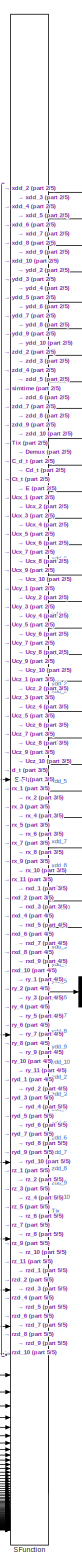
[diagram: Tether forces and moments/Tether Forces/Enable/Subsystem1/tether/Tether2 - part 1/5, top center region]
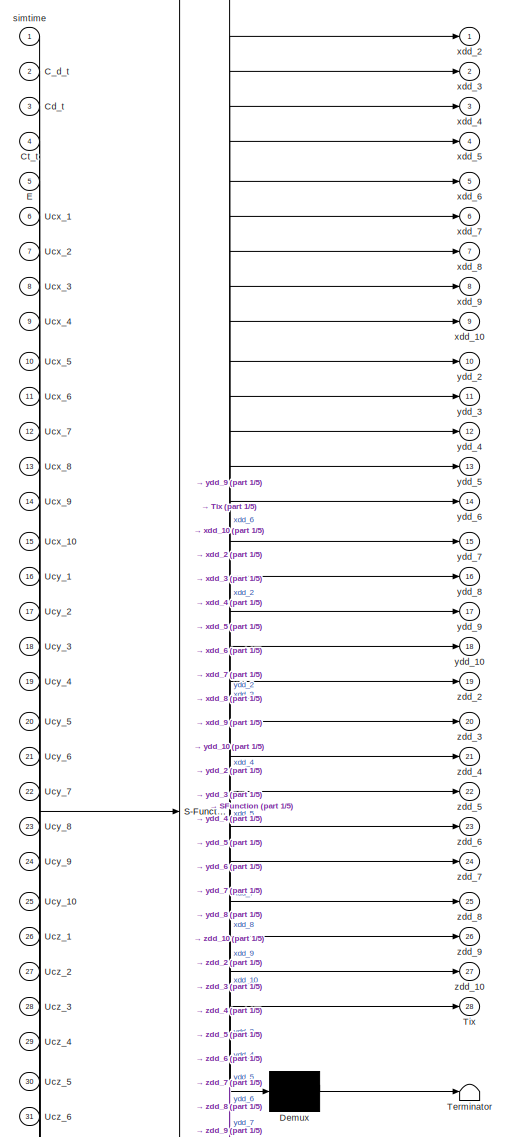
[diagram: Tether forces and moments/Tether Forces/Enable/Subsystem1/tether/Tether2 - part 2/5, full width, top band]
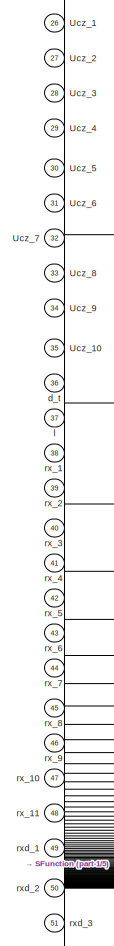
[diagram: Tether forces and moments/Tether Forces/Enable/Subsystem1/tether/Tether2 - part 3/5, middle left region]
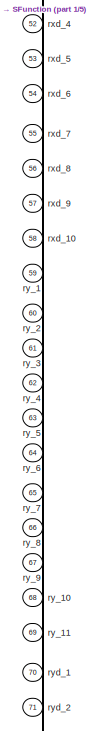
[diagram: Tether forces and moments/Tether Forces/Enable/Subsystem1/tether/Tether2 - part 4/5, middle left region]
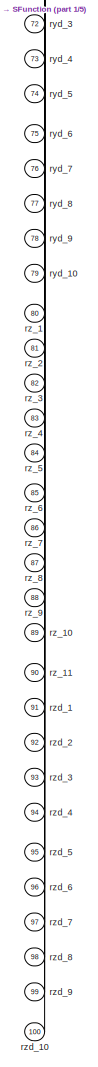
[diagram: Tether forces and moments/Tether Forces/Enable/Subsystem1/tether/Tether2 - part 5/5, bottom left region]
BLOCK [SubSystem] Tether forces and moments/Tether Forces/Enable/Subsystem1/tether/Tether2
  ErrorFcn = Stateflow.Translate.translate
  PermitHierarchicalResolution = ExplicitOnly
  SFBlockType = MATLAB Function
  TreatAsAtomicUnit = on
BLOCK [Demux] Tether forces and moments/Tether Forces/Enable/Subsystem1/tether/Tether2/ Demux 
  Outputs = 1
BLOCK [S-Function] Tether forces and moments/Tether Forces/Enable/Subsystem1/tether/Tether2/ SFunction 
  EnableBusSupport = on
  FunctionName = sf_sfun
  PortCounts = [100 29]
  SFcnIsStateOwnerBlock = off
  SFunctionDeploymentMode = off
  Tag = Stateflow S-Function 15
BLOCK [Terminator] Tether forces and moments/Tether Forces/Enable/Subsystem1/tether/Tether2/ Terminator 
BLOCK [Inport] Tether forces and moments/Tether Forces/Enable/Subsystem1/tether/Tether2/C_d_t
  Port = 2
BLOCK [Inport] Tether forces and moments/Tether Forces/Enable/Subsystem1/tether/Tether2/Cd_t
  Port = 3
BLOCK [Inport] Tether forces and moments/Tether Forces/Enable/Subsystem1/tether/Tether2/Ct_t
  Port = 4
BLOCK [Inport] Tether forces and moments/Tether Forces/Enable/Subsystem1/tether/Tether2/E
  Port = 5
BLOCK [Outport] Tether forces and moments/Tether Forces/Enable/Subsystem1/tether/Tether2/Tix
  Port = 28
BLOCK [Inport] Tether forces and moments/Tether Forces/Enable/Subsystem1/tether/Tether2/Ucx_1
  Port = 6
BLOCK [Inport] Tether forces and moments/Tether Forces/Enable/Subsystem1/tether/Tether2/Ucx_10
  Port = 15
BLOCK [Inport] Tether forces and moments/Tether Forces/Enable/Subsystem1/tether/Tether2/Ucx_2
  Port = 7
BLOCK [Inport] Tether forces and moments/Tether Forces/Enable/Subsystem1/tether/Tether2/Ucx_3
  Port = 8
BLOCK [Inport] Tether forces and moments/Tether Forces/Enable/Subsystem1/tether/Tether2/Ucx_4
  Port = 9
BLOCK [Inport] Tether forces and moments/Tether Forces/Enable/Subsystem1/tether/Tether2/Ucx_5
  Port = 10
BLOCK [Inport] Tether forces and moments/Tether Forces/Enable/Subsystem1/tether/Tether2/Ucx_6
  Port = 11
BLOCK [Inport] Tether forces and moments/Tether Forces/Enable/Subsystem1/tether/Tether2/Ucx_7
  Port = 12
BLOCK [Inport] Tether forces and moments/Tether Forces/Enable/Subsystem1/tether/Tether2/Ucx_8
  Port = 13
BLOCK [Inport] Tether forces and moments/Tether Forces/Enable/Subsystem1/tether/Tether2/Ucx_9
  Port = 14
BLOCK [Inport] Tether forces and moments/Tether Forces/Enable/Subsystem1/tether/Tether2/Ucy_1
  Port = 16
BLOCK [Inport] Tether forces and moments/Tether Forces/Enable/Subsystem1/tether/Tether2/Ucy_10
  Port = 25
BLOCK [Inport] Tether forces and moments/Tether Forces/Enable/Subsystem1/tether/Tether2/Ucy_2
  Port = 17
BLOCK [Inport] Tether forces and moments/Tether Forces/Enable/Subsystem1/tether/Tether2/Ucy_3
  Port = 18
BLOCK [Inport] Tether forces and moments/Tether Forces/Enable/Subsystem1/tether/Tether2/Ucy_4
  Port = 19
BLOCK [Inport] Tether forces and moments/Tether Forces/Enable/Subsystem1/tether/Tether2/Ucy_5
  Port = 20
BLOCK [Inport] Tether forces and moments/Tether Forces/Enable/Subsystem1/tether/Tether2/Ucy_6
  Port = 21
BLOCK [Inport] Tether forces and moments/Tether Forces/Enable/Subsystem1/tether/Tether2/Ucy_7
  Port = 22
BLOCK [Inport] Tether forces and moments/Tether Forces/Enable/Subsystem1/tether/Tether2/Ucy_8
  Port = 23
BLOCK [Inport] Tether forces and moments/Tether Forces/Enable/Subsystem1/tether/Tether2/Ucy_9
  Port = 24
BLOCK [Inport] Tether forces and moments/Tether Forces/Enable/Subsystem1/tether/Tether2/Ucz_1
  Port = 26
BLOCK [Inport] Tether forces and moments/Tether Forces/Enable/Subsystem1/tether/Tether2/Ucz_10
  Port = 35
BLOCK [Inport] Tether forces and moments/Tether Forces/Enable/Subsystem1/tether/Tether2/Ucz_2
  Port = 27
BLOCK [Inport] Tether forces and moments/Tether Forces/Enable/Subsystem1/tether/Tether2/Ucz_3
  Port = 28
BLOCK [Inport] Tether forces and moments/Tether Forces/Enable/Subsystem1/tether/Tether2/Ucz_4
  Port = 29
BLOCK [Inport] Tether forces and moments/Tether Forces/Enable/Subsystem1/tether/Tether2/Ucz_5
  Port = 30
BLOCK [Inport] Tether forces and moments/Tether Forces/Enable/Subsystem1/tether/Tether2/Ucz_6
  Port = 31
BLOCK [Inport] Tether forces and moments/Tether Forces/Enable/Subsystem1/tether/Tether2/Ucz_7
  Port = 32
BLOCK [Inport] Tether forces and moments/Tether Forces/Enable/Subsystem1/tether/Tether2/Ucz_8
  Port = 33
BLOCK [Inport] Tether forces and moments/Tether Forces/Enable/Subsystem1/tether/Tether2/Ucz_9
  Port = 34
BLOCK [Inport] Tether forces and moments/Tether Forces/Enable/Subsystem1/tether/Tether2/d_t
  Port = 36
BLOCK [Inport] Tether forces and moments/Tether Forces/Enable/Subsystem1/tether/Tether2/l
  Port = 37
BLOCK [Inport] Tether forces and moments/Tether Forces/Enable/Subsystem1/tether/Tether2/rx_1
  Port = 38
BLOCK [Inport] Tether forces and moments/Tether Forces/Enable/Subsystem1/tether/Tether2/rx_10
  Port = 47
BLOCK [Inport] Tether forces and moments/Tether Forces/Enable/Subsystem1/tether/Tether2/rx_11
  Port = 48
BLOCK [Inport] Tether forces and moments/Tether Forces/Enable/Subsystem1/tether/Tether2/rx_2
  Port = 39
BLOCK [Inport] Tether forces and moments/Tether Forces/Enable/Subsystem1/tether/Tether2/rx_3
  Port = 40
BLOCK [Inport] Tether forces and moments/Tether Forces/Enable/Subsystem1/tether/Tether2/rx_4
  Port = 41
BLOCK [Inport] Tether forces and moments/Tether Forces/Enable/Subsystem1/tether/Tether2/rx_5
  Port = 42
BLOCK [Inport] Tether forces and moments/Tether Forces/Enable/Subsystem1/tether/Tether2/rx_6
  Port = 43
BLOCK [Inport] Tether forces and moments/Tether Forces/Enable/Subsystem1/tether/Tether2/rx_7
  Port = 44
BLOCK [Inport] Tether forces and moments/Tether Forces/Enable/Subsystem1/tether/Tether2/rx_8
  Port = 45
BLOCK [Inport] Tether forces and moments/Tether Forces/Enable/Subsystem1/tether/Tether2/rx_9
  Port = 46
BLOCK [Inport] Tether forces and moments/Tether Forces/Enable/Subsystem1/tether/Tether2/rxd_1
  Port = 49
BLOCK [Inport] Tether forces and moments/Tether Forces/Enable/Subsystem1/tether/Tether2/rxd_10
  Port = 58
BLOCK [Inport] Tether forces and moments/Tether Forces/Enable/Subsystem1/tether/Tether2/rxd_2
  Port = 50
BLOCK [Inport] Tether forces and moments/Tether Forces/Enable/Subsystem1/tether/Tether2/rxd_3
  Port = 51
BLOCK [Inport] Tether forces and moments/Tether Forces/Enable/Subsystem1/tether/Tether2/rxd_4
  Port = 52
BLOCK [Inport] Tether forces and moments/Tether Forces/Enable/Subsystem1/tether/Tether2/rxd_5
  Port = 53
BLOCK [Inport] Tether forces and moments/Tether Forces/Enable/Subsystem1/tether/Tether2/rxd_6
  Port = 54
BLOCK [Inport] Tether forces and moments/Tether Forces/Enable/Subsystem1/tether/Tether2/rxd_7
  Port = 55
BLOCK [Inport] Tether forces and moments/Tether Forces/Enable/Subsystem1/tether/Tether2/rxd_8
  Port = 56
BLOCK [Inport] Tether forces and moments/Tether Forces/Enable/Subsystem1/tether/Tether2/rxd_9
  Port = 57
BLOCK [Inport] Tether forces and moments/Tether Forces/Enable/Subsystem1/tether/Tether2/ry_1
  Port = 59
BLOCK [Inport] Tether forces and moments/Tether Forces/Enable/Subsystem1/tether/Tether2/ry_10
  Port = 68
BLOCK [Inport] Tether forces and moments/Tether Forces/Enable/Subsystem1/tether/Tether2/ry_11
  Port = 69
BLOCK [Inport] Tether forces and moments/Tether Forces/Enable/Subsystem1/tether/Tether2/ry_2
  Port = 60
BLOCK [Inport] Tether forces and moments/Tether Forces/Enable/Subsystem1/tether/Tether2/ry_3
  Port = 61
BLOCK [Inport] Tether forces and moments/Tether Forces/Enable/Subsystem1/tether/Tether2/ry_4
  Port = 62
BLOCK [Inport] Tether forces and moments/Tether Forces/Enable/Subsystem1/tether/Tether2/ry_5
  Port = 63
BLOCK [Inport] Tether forces and moments/Tether Forces/Enable/Subsystem1/tether/Tether2/ry_6
  Port = 64
BLOCK [Inport] Tether forces and moments/Tether Forces/Enable/Subsystem1/tether/Tether2/ry_7
  Port = 65
BLOCK [Inport] Tether forces and moments/Tether Forces/Enable/Subsystem1/tether/Tether2/ry_8
  Port = 66
BLOCK [Inport] Tether forces and moments/Tether Forces/Enable/Subsystem1/tether/Tether2/ry_9
  Port = 67
BLOCK [Inport] Tether forces and moments/Tether Forces/Enable/Subsystem1/tether/Tether2/ryd_1
  Port = 70
BLOCK [Inport] Tether forces and moments/Tether Forces/Enable/Subsystem1/tether/Tether2/ryd_10
  Port = 79
BLOCK [Inport] Tether forces and moments/Tether Forces/Enable/Subsystem1/tether/Tether2/ryd_2
  Port = 71
BLOCK [Inport] Tether forces and moments/Tether Forces/Enable/Subsystem1/tether/Tether2/ryd_3
  Port = 72
BLOCK [Inport] Tether forces and moments/Tether Forces/Enable/Subsystem1/tether/Tether2/ryd_4
  Port = 73
BLOCK [Inport] Tether forces and moments/Tether Forces/Enable/Subsystem1/tether/Tether2/ryd_5
  Port = 74
BLOCK [Inport] Tether forces and moments/Tether Forces/Enable/Subsystem1/tether/Tether2/ryd_6
  Port = 75
BLOCK [Inport] Tether forces and moments/Tether Forces/Enable/Subsystem1/tether/Tether2/ryd_7
  Port = 76
BLOCK [Inport] Tether forces and moments/Tether Forces/Enable/Subsystem1/tether/Tether2/ryd_8
  Port = 77
BLOCK [Inport] Tether forces and moments/Tether Forces/Enable/Subsystem1/tether/Tether2/ryd_9
  Port = 78
BLOCK [Inport] Tether forces and moments/Tether Forces/Enable/Subsystem1/tether/Tether2/rz_1
  Port = 80
BLOCK [Inport] Tether forces and moments/Tether Forces/Enable/Subsystem1/tether/Tether2/rz_10
  Port = 89
BLOCK [Inport] Tether forces and moments/Tether Forces/Enable/Subsystem1/tether/Tether2/rz_11
  Port = 90
BLOCK [Inport] Tether forces and moments/Tether Forces/Enable/Subsystem1/tether/Tether2/rz_2
  Port = 81
BLOCK [Inport] Tether forces and moments/Tether Forces/Enable/Subsystem1/tether/Tether2/rz_3
  Port = 82
BLOCK [Inport] Tether forces and moments/Tether Forces/Enable/Subsystem1/tether/Tether2/rz_4
  Port = 83
BLOCK [Inport] Tether forces and moments/Tether Forces/Enable/Subsystem1/tether/Tether2/rz_5
  Port = 84
BLOCK [Inport] Tether forces and moments/Tether Forces/Enable/Subsystem1/tether/Tether2/rz_6
  Port = 85
BLOCK [Inport] Tether forces and moments/Tether Forces/Enable/Subsystem1/tether/Tether2/rz_7
  Port = 86
BLOCK [Inport] Tether forces and moments/Tether Forces/Enable/Subsystem1/tether/Tether2/rz_8
  Port = 87
BLOCK [Inport] Tether forces and moments/Tether Forces/Enable/Subsystem1/tether/Tether2/rz_9
  Port = 88
BLOCK [Inport] Tether forces and moments/Tether Forces/Enable/Subsystem1/tether/Tether2/rzd_1
  Port = 91
BLOCK [Inport] Tether forces and moments/Tether Forces/Enable/Subsystem1/tether/Tether2/rzd_10
  Port = 100
BLOCK [Inport] Tether forces and moments/Tether Forces/Enable/Subsystem1/tether/Tether2/rzd_2
  Port = 92
BLOCK [Inport] Tether forces and moments/Tether Forces/Enable/Subsystem1/tether/Tether2/rzd_3
  Port = 93
BLOCK [Inport] Tether forces and moments/Tether Forces/Enable/Subsystem1/tether/Tether2/rzd_4
  Port = 94
BLOCK [Inport] Tether forces and moments/Tether Forces/Enable/Subsystem1/tether/Tether2/rzd_5
  Port = 95
BLOCK [Inport] Tether forces and moments/Tether Forces/Enable/Subsystem1/tether/Tether2/rzd_6
  Port = 96
BLOCK [Inport] Tether forces and moments/Tether Forces/Enable/Subsystem1/tether/Tether2/rzd_7
  Port = 97
BLOCK [Inport] Tether forces and moments/Tether Forces/Enable/Subsystem1/tether/Tether2/rzd_8
  Port = 98
BLOCK [Inport] Tether forces and moments/Tether Forces/Enable/Subsystem1/tether/Tether2/rzd_9
  Port = 99
BLOCK [Inport] Tether forces and moments/Tether Forces/Enable/Subsystem1/tether/Tether2/simtime
BLOCK [Outport] Tether forces and moments/Tether Forces/Enable/Subsystem1/tether/Tether2/xdd_10
  Port = 9
BLOCK [Outport] Tether forces and moments/Tether Forces/Enable/Subsystem1/tether/Tether2/xdd_2
BLOCK [Outport] Tether forces and moments/Tether Forces/Enable/Subsystem1/tether/Tether2/xdd_3
  Port = 2
BLOCK [Outport] Tether forces and moments/Tether Forces/Enable/Subsystem1/tether/Tether2/xdd_4
  Port = 3
BLOCK [Outport] Tether forces and moments/Tether Forces/Enable/Subsystem1/tether/Tether2/xdd_5
  Port = 4
BLOCK [Outport] Tether forces and moments/Tether Forces/Enable/Subsystem1/tether/Tether2/xdd_6
  Port = 5
BLOCK [Outport] Tether forces and moments/Tether Forces/Enable/Subsystem1/tether/Tether2/xdd_7
  Port = 6
BLOCK [Outport] Tether forces and moments/Tether Forces/Enable/Subsystem1/tether/Tether2/xdd_8
  Port = 7
BLOCK [Outport] Tether forces and moments/Tether Forces/Enable/Subsystem1/tether/Tether2/xdd_9
  Port = 8
BLOCK [Outport] Tether forces and moments/Tether Forces/Enable/Subsystem1/tether/Tether2/ydd_10
  Port = 18
BLOCK [Outport] Tether forces and moments/Tether Forces/Enable/Subsystem1/tether/Tether2/ydd_2
  Port = 10
BLOCK [Outport] Tether forces and moments/Tether Forces/Enable/Subsystem1/tether/Tether2/ydd_3
  Port = 11
BLOCK [Outport] Tether forces and moments/Tether Forces/Enable/Subsystem1/tether/Tether2/ydd_4
  Port = 12
BLOCK [Outport] Tether forces and moments/Tether Forces/Enable/Subsystem1/tether/Tether2/ydd_5
  Port = 13
BLOCK [Outport] Tether forces and moments/Tether Forces/Enable/Subsystem1/tether/Tether2/ydd_6
  Port = 14
BLOCK [Outport] Tether forces and moments/Tether Forces/Enable/Subsystem1/tether/Tether2/ydd_7
  Port = 15
BLOCK [Outport] Tether forces and moments/Tether Forces/Enable/Subsystem1/tether/Tether2/ydd_8
  Port = 16
BLOCK [Outport] Tether forces and moments/Tether Forces/Enable/Subsystem1/tether/Tether2/ydd_9
  Port = 17
BLOCK [Outport] Tether forces and moments/Tether Forces/Enable/Subsystem1/tether/Tether2/zdd_10
  Port = 27
BLOCK [Outport] Tether forces and moments/Tether Forces/Enable/Subsystem1/tether/Tether2/zdd_2
  Port = 19
BLOCK [Outport] Tether forces and moments/Tether Forces/Enable/Subsystem1/tether/Tether2/zdd_3
  Port = 20
BLOCK [Outport] Tether forces and moments/Tether Forces/Enable/Subsystem1/tether/Tether2/zdd_4
  Port = 21
BLOCK [Outport] Tether forces and moments/Tether Forces/Enable/Subsystem1/tether/Tether2/zdd_5
  Port = 22
BLOCK [Outport] Tether forces and moments/Tether Forces/Enable/Subsystem1/tether/Tether2/zdd_6
  Port = 23
BLOCK [Outport] Tether forces and moments/Tether Forces/Enable/Subsystem1/tether/Tether2/zdd_7
  Port = 24
BLOCK [Outport] Tether forces and moments/Tether Forces/Enable/Subsystem1/tether/Tether2/zdd_8
  Port = 25
BLOCK [Outport] Tether forces and moments/Tether Forces/Enable/Subsystem1/tether/Tether2/zdd_9
  Port = 26
BLOCK [Inport] Tether forces and moments/Tether Forces/Enable/Subsystem1/tether/Tether_Parameters
  Port = 7
BLOCK [ToWorkspace] Tether forces and moments/Tether Forces/Enable/Subsystem1/tether/To Workspace3
  FixptAsFi = on
  MaxDataPoints = inf
  SampleTime = -1
  SaveFormat = Timeseries
  VariableName = T2
BLOCK [SubSystem] Tether forces and moments/Tether Forces/Enable/Subsystem1/tether/World to body 1
  ErrorFcn = Stateflow.Translate.translate
  PermitHierarchicalResolution = ExplicitOnly
  SFBlockType = MATLAB Function
  TreatAsAtomicUnit = on
BLOCK [Demux] Tether forces and moments/Tether Forces/Enable/Subsystem1/tether/World to body 1/ Demux 
  Outputs = 1
BLOCK [S-Function] Tether forces and moments/Tether Forces/Enable/Subsystem1/tether/World to body 1/ SFunction 
  EnableBusSupport = on
  FunctionName = sf_sfun
  PortCounts = [4 2]
  SFcnIsStateOwnerBlock = off
  SFunctionDeploymentMode = off
  Tag = Stateflow S-Function 27
BLOCK [Terminator] Tether forces and moments/Tether Forces/Enable/Subsystem1/tether/World to body 1/ Terminator 
BLOCK [Outport] Tether forces and moments/Tether Forces/Enable/Subsystem1/tether/World to body 1/F_tet_b
BLOCK [Inport] Tether forces and moments/Tether Forces/Enable/Subsystem1/tether/World to body 1/F_tet_w
BLOCK [Inport] Tether forces and moments/Tether Forces/Enable/Subsystem1/tether/World to body 1/phi
  Port = 2
BLOCK [Inport] Tether forces and moments/Tether Forces/Enable/Subsystem1/tether/World to body 1/psi
  Port = 4
BLOCK [Inport] Tether forces and moments/Tether Forces/Enable/Subsystem1/tether/World to body 1/theta
  Port = 3
BLOCK [SubSystem] Tether forces and moments/Tether Forces/Enable/Subsystem4
BLOCK [BusCreator] Tether forces and moments/Tether Forces/Enable/Subsystem4/Bus Creator
  DisplayOption = bar
  InheritFromInputs = off
  Inputs = 6
  OutDataTypeStr = Bus: tauExt
BLOCK [Constant] Tether forces and moments/Tether Forces/Enable/Subsystem4/Constant
  Value = 0
BLOCK [Demux] Tether forces and moments/Tether Forces/Enable/Subsystem4/Demux
  Outputs = 3
BLOCK [Inport] Tether forces and moments/Tether Forces/Enable/Subsystem4/F_tet_lin
BLOCK [Outport] Tether forces and moments/Tether Forces/Enable/Subsystem4/tauExt
  OutDataTypeStr = Bus: tauExt
BLOCK [Constant] Tether forces and moments/Tether Forces/Enable/Tangentiel drag (C_t)
  Value = ext.tether.Ct
BLOCK [Terminator] Tether forces and moments/Tether Forces/Enable/Terminator
BLOCK [Constant] Tether forces and moments/Tether Forces/Enable/Youngs modulus (E)
  Value = ext.tether.E
BLOCK [Outport] Tether forces and moments/Tether Forces/Enable/tauExt
  OutDataTypeStr = Bus: tauExt
BLOCK [Outport] Tether forces and moments/Tether Forces/tauExt
BLOCK [Outport] Tether forces and moments/tauExt
BLOCK [SubSystem] Thruster Dynamics (open loop)
BLOCK [BusCreator] Thruster Dynamics (open loop)/Bus Creator
  DisplayOption = bar
  InheritFromInputs = on
  Inputs = 6
  OutDataTypeStr = Bus: tau
BLOCK [Constant] Thruster Dynamics (open loop)/Constant
  Value = Value
BLOCK [Demux] Thruster Dynamics (open loop)/Demux
  Outputs = 6
BLOCK [Goto] Thruster Dynamics (open loop)/Goto
  GotoTag = tau
  TagVisibility = global
BLOCK [Switch] Thruster Dynamics (open loop)/Switch
  Criteria = u2 > Threshold
  InputSameDT = off
  SaturateOnIntegerOverflow = off
BLOCK [SubSystem] Thruster Dynamics (open loop)/impulse
BLOCK [Sum] Thruster Dynamics (open loop)/impulse/Add
  IconShape = rectangular
BLOCK [Derivative] Thruster Dynamics (open loop)/impulse/Derivative
BLOCK [Derivative] Thruster Dynamics (open loop)/impulse/Derivative1
BLOCK [Step] Thruster Dynamics (open loop)/impulse/Step
  After = -thrust.control.Tau+thrust.control.Tau
  Before = -thrust.control.Tau
  SampleTime = 0
  Time = thrust.start
BLOCK [Step] Thruster Dynamics (open loop)/impulse/Step1
  After = 0
  Before = thrust.control.Tau
  SampleTime = 0
  Time = thrust.start + thrust.duration
BLOCK [Outport] Thruster Dynamics (open loop)/impulse/Tau
BLOCK [SubSystem] Thruster Dynamics (open loop)/pulse
BLOCK [Sum] Thruster Dynamics (open loop)/pulse/Add
  IconShape = rectangular
BLOCK [Step] Thruster Dynamics (open loop)/pulse/Step
  After = -thrust.control.Tau+thrust.control.Tau
  Before = -thrust.control.Tau
  SampleTime = 0
  Time = thrust.start
BLOCK [Step] Thruster Dynamics (open loop)/pulse/Step1
  After = 0
  Before = thrust.control.Tau
  SampleTime = 0
  Time = thrust.duration+thrust.start
BLOCK [Outport] Thruster Dynamics (open loop)/pulse/Tau
BLOCK [Outport] Thruster Dynamics (open loop)/tau
  OutDataTypeStr = Bus: tau
ANNOTATION (root): Linear and Angular Position
ANNOTATION (root): Linear and Angular Velocity
ANNOTATION (root): Thrust Forces and Moments in {b} frame
ANNOTATION (root): Ocean Currents
ANNOTATION (root): Results
ANNOTATION (root): Rigid-Body Dynamics
ANNOTATION (root): Tether forces
ANNOTATION (root): Thruster Dynamics
ANNOTATION Kinematics: Velocity and position vector in NED frame
ANNOTATION Kinetics : Linear position (m)
ANNOTATION Kinetics : Relative Velocity
ANNOTATION Kinetics : Velocity in BODY frame
LINE Bus Selector1:1 -> Scope3:1
LINE Bus Selector1:2 -> Scope3:2
LINE Bus Selector1:3 -> Scope3:3
LINE Bus Selector1:4 -> Scope4:1
LINE Bus Selector1:5 -> Scope4:2
LINE Bus Selector1:6 -> Scope4:3
LINE Bus Selector2:1 -> Scope5:1
LINE Bus Selector2:2 -> Scope5:2
LINE Bus Selector2:3 -> Scope5:3
LINE Bus Selector2:4 -> Scope6:1
LINE Bus Selector2:5 -> Scope6:2
LINE Bus Selector2:6 -> Scope6:3
LINE Bus Selector:1 -> Scope1:1
LINE Bus Selector:2 -> Scope1:2
LINE Bus Selector:3 -> Scope1:3
LINE Bus Selector:4 -> Radians to Degrees2:1
LINE Bus Selector:5 -> Radians to Degrees1:1
LINE Bus Selector:6 -> Radians to Degrees3:1
LINE From1:1 -> Bus Selector1:1
LINE From2:1 -> Kinetics :1
LINE From3:1 -> Ocean Currents:1
LINE From4:1 -> Bus Selector2:1
LINE From:1 -> Bus Selector:1
NET Kinematics/ BODY to NED:1 -> Kinematics/Bus Selector:1, Kinematics/Goto1:1, Kinematics/itaD:1
NET Kinematics/Bus Creator1:1 -> Kinematics/ BODY to NED:2, Kinematics/Goto:1, Kinematics/ita:1
LINE Kinematics/Bus Selector:1 -> Kinematics/Integrator:1
LINE Kinematics/Bus Selector:2 -> Kinematics/Integrator1:1
LINE Kinematics/Bus Selector:3 -> Kinematics/Integrator3:1
LINE Kinematics/Bus Selector:4 -> Kinematics/Integrator4:1
LINE Kinematics/Bus Selector:5 -> Kinematics/Integrator5:1
LINE Kinematics/Bus Selector:6 -> Kinematics/Integrator6:1
LINE Kinematics/Integrator1:1 -> Kinematics/Bus Creator1:2
LINE Kinematics/Integrator3:1 -> Kinematics/Bus Creator1:3
LINE Kinematics/Integrator4:1 -> Kinematics/Bus Creator1:4
LINE Kinematics/Integrator5:1 -> Kinematics/Bus Creator1:5
LINE Kinematics/Integrator6:1 -> Kinematics/Bus Creator1:6
LINE Kinematics/Integrator:1 -> Kinematics/Bus Creator1:1
LINE Kinematics/Vb:1 -> Kinematics/ BODY to NED:1
LINE Kinematics:1 -> Terminator:1
LINE Kinematics:2 -> Terminator2:1
LINE Kinetics /6DOF Equation of Motion :1 -> Kinetics /Bus Selector2:1
NET Kinetics /Bus Creator1:1 -> Kinetics /6DOF Equation of Motion :2, Kinetics /Demux1:1
LINE Kinetics /Bus Creator2:1 -> Kinetics /6DOF Equation of Motion :3
NET Kinetics /Bus Creator:1 -> Kinetics /6DOF Equation of Motion :1, Kinetics /Bus Selector1:1, Kinetics /Bus Selector3:1, Kinetics /Bus Selector4:1, Kinetics /Goto:1, Kinetics /Vb:1
LINE Kinetics /Bus Selector1:1 -> Kinetics /Mux2:1
LINE Kinetics /Bus Selector1:2 -> Kinetics /Mux2:2
LINE Kinetics /Bus Selector1:3 -> Kinetics /Mux2:3
LINE Kinetics /Bus Selector2:1 -> Kinetics /Integrator:1
LINE Kinetics /Bus Selector2:2 -> Kinetics /Integrator1:1
LINE Kinetics /Bus Selector2:3 -> Kinetics /Integrator2:1
LINE Kinetics /Bus Selector2:4 -> Kinetics /Integrator3:1
LINE Kinetics /Bus Selector2:5 -> Kinetics /Integrator4:1
LINE Kinetics /Bus Selector2:6 -> Kinetics /Integrator5:1
LINE Kinetics /Bus Selector3:1 -> Kinetics /Mux3:1
LINE Kinetics /Bus Selector3:2 -> Kinetics /Mux3:2
LINE Kinetics /Bus Selector3:3 -> Kinetics /Mux3:3
LINE Kinetics /Bus Selector4:1 -> Kinetics /Integrator6:1
LINE Kinetics /Bus Selector4:2 -> Kinetics /Integrator7:1
LINE Kinetics /Bus Selector4:3 -> Kinetics /Integrator8:1
LINE Kinetics /Bus Selector:1 -> Kinetics /Mux1:1
LINE Kinetics /Bus Selector:2 -> Kinetics /Mux1:2
LINE Kinetics /Bus Selector:3 -> Kinetics /Mux1:3
LINE Kinetics /Demux1:1 -> Kinetics /Derivative:1
LINE Kinetics /Demux1:2 -> Kinetics /Derivative1:1
LINE Kinetics /Demux1:3 -> Kinetics /Derivative2:1
LINE Kinetics /Demux1:4 -> Kinetics /Derivative3:1
LINE Kinetics /Demux1:5 -> Kinetics /Derivative4:1
LINE Kinetics /Demux1:6 -> Kinetics /Derivative5:1
LINE Kinetics /Demux2:1 -> Kinetics /Bus Creator1:4
LINE Kinetics /Demux2:2 -> Kinetics /Bus Creator1:5
LINE Kinetics /Demux2:3 -> Kinetics /Bus Creator1:6
LINE Kinetics /Demux:1 -> Kinetics /Bus Creator1:1
LINE Kinetics /Demux:2 -> Kinetics /Bus Creator1:2
LINE Kinetics /Demux:3 -> Kinetics /Bus Creator1:3
LINE Kinetics /Derivative1:1 -> Kinetics /Bus Creator2:2
LINE Kinetics /Derivative2:1 -> Kinetics /Bus Creator2:3
LINE Kinetics /Derivative3:1 -> Kinetics /Bus Creator2:4
LINE Kinetics /Derivative4:1 -> Kinetics /Bus Creator2:5
LINE Kinetics /Derivative5:1 -> Kinetics /Bus Creator2:6
LINE Kinetics /Derivative:1 -> Kinetics /Bus Creator2:1
LINE Kinetics /Integrator1:1 -> Kinetics /Bus Creator:2
LINE Kinetics /Integrator2:1 -> Kinetics /Bus Creator:3
LINE Kinetics /Integrator3:1 -> Kinetics /Bus Creator:4
LINE Kinetics /Integrator4:1 -> Kinetics /Bus Creator:5
LINE Kinetics /Integrator5:1 -> Kinetics /Bus Creator:6
LINE Kinetics /Integrator6:1 -> Kinetics /Mux:1
LINE Kinetics /Integrator7:1 -> Kinetics /Mux:2
LINE Kinetics /Integrator8:1 -> Kinetics /Mux:3
LINE Kinetics /Integrator:1 -> Kinetics /Bus Creator:1
LINE Kinetics /Mux1:1 -> Kinetics /Sum:1
LINE Kinetics /Mux2:1 -> Kinetics /Sum:2
LINE Kinetics /Mux3:1 -> Kinetics /Demux2:1
NET Kinetics /Mux:1 -> Kinetics /Goto1:1, Kinetics /Terminator:1
LINE Kinetics /Sum:1 -> Kinetics /Demux:1
LINE Kinetics /Vcb:1 -> Kinetics /Bus Selector:1
LINE Kinetics /ita:1 -> Kinetics /6DOF Equation of Motion :6
LINE Kinetics /tau:1 -> Kinetics /6DOF Equation of Motion :4
LINE Kinetics /tauExt:1 -> Kinetics /6DOF Equation of Motion :5
LINE Kinetics :1 -> Kinematics:1
LINE Ocean Currents/Constant1:1 -> Ocean Currents/Switch:2
LINE Ocean Currents/Constant:1 -> Ocean Currents/Switch:3
NET Ocean Currents/FLOW 2 NED:1 -> Ocean Currents/Goto:1, Ocean Currents/NED 2 BODY:1
LINE Ocean Currents/NED 2 BODY:1 -> Ocean Currents/Vcb:1
LINE Ocean Currents/Ocean Currents/VC_CONSTANT/Constant:1 -> Ocean Currents/Ocean Currents/VC_CONSTANT/Vc:1
LINE Ocean Currents/Ocean Currents/VC_RANDOM/Band-Limited White Noise:1 -> Ocean Currents/Ocean Currents/VC_RANDOM/Gauss-Markov first order method:1
LINE Ocean Currents/Ocean Currents/VC_RANDOM/Gauss-Markov first order method:1 -> Ocean Currents/Ocean Currents/VC_RANDOM/Saturation:1
LINE Ocean Currents/Ocean Currents/VC_RANDOM/Saturation:1 -> Ocean Currents/Ocean Currents/VC_RANDOM/Vc:1
LINE Ocean Currents/Ocean Currents:1 -> Ocean Currents/Switch:1
LINE Ocean Currents/Switch:1 -> Ocean Currents/FLOW 2 NED:1
LINE Ocean Currents/ita:1 -> Ocean Currents/NED 2 BODY:2
LINE Ocean Currents:1 -> Kinetics :2
LINE Radians to Degrees1:1 -> Scope2:2
LINE Radians to Degrees2:1 -> Scope2:1
LINE Radians to Degrees3:1 -> Scope2:3
LINE Tether forces and moments/Tether Forces/Disable/Bus Creator:1 -> Tether forces and moments/Tether Forces/Disable/tauExt:1
LINE Tether forces and moments/Tether Forces/Disable/Constant1:1 -> Tether forces and moments/Tether Forces/Disable/Bus Creator:2
LINE Tether forces and moments/Tether Forces/Disable/Constant2:1 -> Tether forces and moments/Tether Forces/Disable/Bus Creator:3
LINE Tether forces and moments/Tether Forces/Disable/Constant3:1 -> Tether forces and moments/Tether Forces/Disable/Bus Creator:4
LINE Tether forces and moments/Tether Forces/Disable/Constant4:1 -> Tether forces and moments/Tether Forces/Disable/Bus Creator:5
LINE Tether forces and moments/Tether Forces/Disable/Constant5:1 -> Tether forces and moments/Tether Forces/Disable/Bus Creator:6
LINE Tether forces and moments/Tether Forces/Disable/Constant:1 -> Tether forces and moments/Tether Forces/Disable/Bus Creator:1
LINE Tether forces and moments/Tether Forces/Enable/Bus Selector:1 -> Tether forces and moments/Tether Forces/Enable/Goto1:1
LINE Tether forces and moments/Tether Forces/Enable/Bus Selector:2 -> Tether forces and moments/Tether Forces/Enable/Goto2:1
LINE Tether forces and moments/Tether Forces/Enable/Bus Selector:3 -> Tether forces and moments/Tether Forces/Enable/Goto4:1
LINE Tether forces and moments/Tether Forces/Enable/Diameter (d_tet):1 -> Tether forces and moments/Tether Forces/Enable/Mux3:5
LINE Tether forces and moments/Tether Forces/Enable/From1:1 -> Tether forces and moments/Tether Forces/Enable/Subsystem1:1
LINE Tether forces and moments/Tether Forces/Enable/From:1 -> Tether forces and moments/Tether Forces/Enable/Bus Selector:1
LINE Tether forces and moments/Tether Forces/Enable/Internal damping (C):1 -> Tether forces and moments/Tether Forces/Enable/Mux3:1
LINE Tether forces and moments/Tether Forces/Enable/Length:1 -> Tether forces and moments/Tether Forces/Enable/Mux3:6
LINE Tether forces and moments/Tether Forces/Enable/Mux3:1 -> Tether forces and moments/Tether Forces/Enable/Subsystem1:2
LINE Tether forces and moments/Tether Forces/Enable/Normal drag (C_n):1 -> Tether forces and moments/Tether Forces/Enable/Mux3:2
LINE Tether forces and moments/Tether Forces/Enable/Subsystem1/Bus Selector4:1 -> Tether forces and moments/Tether Forces/Enable/Subsystem1/tether:1
LINE Tether forces and moments/Tether Forces/Enable/Subsystem1/Bus Selector4:2 -> Tether forces and moments/Tether Forces/Enable/Subsystem1/tether:2
LINE Tether forces and moments/Tether Forces/Enable/Subsystem1/Bus Selector4:3 -> Tether forces and moments/Tether Forces/Enable/Subsystem1/tether:3
LINE Tether forces and moments/Tether Forces/Enable/Subsystem1/Bus Selector4:4 -> Tether forces and moments/Tether Forces/Enable/Subsystem1/Gain3:1
LINE Tether forces and moments/Tether Forces/Enable/Subsystem1/Bus Selector4:5 -> Tether forces and moments/Tether Forces/Enable/Subsystem1/Gain4:1
LINE Tether forces and moments/Tether Forces/Enable/Subsystem1/Bus Selector4:6 -> Tether forces and moments/Tether Forces/Enable/Subsystem1/Gain5:1
LINE Tether forces and moments/Tether Forces/Enable/Subsystem1/Gain3:1 -> Tether forces and moments/Tether Forces/Enable/Subsystem1/Memory1:1
LINE Tether forces and moments/Tether Forces/Enable/Subsystem1/Gain4:1 -> Tether forces and moments/Tether Forces/Enable/Subsystem1/Memory2:1
LINE Tether forces and moments/Tether Forces/Enable/Subsystem1/Gain5:1 -> Tether forces and moments/Tether Forces/Enable/Subsystem1/Memory3:1
LINE Tether forces and moments/Tether Forces/Enable/Subsystem1/Memory1:1 -> Tether forces and moments/Tether Forces/Enable/Subsystem1/tether:4
LINE Tether forces and moments/Tether Forces/Enable/Subsystem1/Memory2:1 -> Tether forces and moments/Tether Forces/Enable/Subsystem1/tether:5
LINE Tether forces and moments/Tether Forces/Enable/Subsystem1/Memory3:1 -> Tether forces and moments/Tether Forces/Enable/Subsystem1/tether:6
LINE Tether forces and moments/Tether Forces/Enable/Subsystem1/Mux10:1 -> Tether forces and moments/Tether Forces/Enable/Subsystem1/Tether Force:1
LINE Tether forces and moments/Tether Forces/Enable/Subsystem1/Tether_Parameters:1 -> Tether forces and moments/Tether Forces/Enable/Subsystem1/tether:7
LINE Tether forces and moments/Tether Forces/Enable/Subsystem1/ita:1 -> Tether forces and moments/Tether Forces/Enable/Subsystem1/Bus Selector4:1
LINE Tether forces and moments/Tether Forces/Enable/Subsystem1/tether/Clock:1 -> Tether forces and moments/Tether Forces/Enable/Subsystem1/tether/Tether2:1
LINE Tether forces and moments/Tether Forces/Enable/Subsystem1/tether/Constant10:1 -> Tether forces and moments/Tether Forces/Enable/Subsystem1/tether/Tether2:70
LINE Tether forces and moments/Tether Forces/Enable/Subsystem1/tether/Constant12:1 -> Tether forces and moments/Tether Forces/Enable/Subsystem1/tether/Tether2:80
LINE Tether forces and moments/Tether Forces/Enable/Subsystem1/tether/Constant13:1 -> Tether forces and moments/Tether Forces/Enable/Subsystem1/tether/Tether2:49
LINE Tether forces and moments/Tether Forces/Enable/Subsystem1/tether/Constant1:1 -> Tether forces and moments/Tether Forces/Enable/Subsystem1/tether/Tether2:59
LINE Tether forces and moments/Tether Forces/Enable/Subsystem1/tether/Constant2:1 -> Tether forces and moments/Tether Forces/Enable/Subsystem1/tether/Tether2:38
LINE Tether forces and moments/Tether Forces/Enable/Subsystem1/tether/Constant3:1 -> Tether forces and moments/Tether Forces/Enable/Subsystem1/tether/Mux3:3
LINE Tether forces and moments/Tether Forces/Enable/Subsystem1/tether/Constant4:1 -> Tether forces and moments/Tether Forces/Enable/Subsystem1/tether/Mux3:5
LINE Tether forces and moments/Tether Forces/Enable/Subsystem1/tether/Constant7:1 -> Tether forces and moments/Tether Forces/Enable/Subsystem1/tether/Mux3:1
LINE Tether forces and moments/Tether Forces/Enable/Subsystem1/tether/Constant:1 -> Tether forces and moments/Tether Forces/Enable/Subsystem1/tether/Tether2:91
LINE Tether forces and moments/Tether Forces/Enable/Subsystem1/tether/Demux4:1 -> Tether forces and moments/Tether Forces/Enable/Subsystem1/tether/Out1:1
LINE Tether forces and moments/Tether Forces/Enable/Subsystem1/tether/Demux4:2 -> Tether forces and moments/Tether Forces/Enable/Subsystem1/tether/Out2:1
LINE Tether forces and moments/Tether Forces/Enable/Subsystem1/tether/Demux4:3 -> Tether forces and moments/Tether Forces/Enable/Subsystem1/tether/Out3:1
LINE Tether forces and moments/Tether Forces/Enable/Subsystem1/tether/Demux6:1 -> Tether forces and moments/Tether Forces/Enable/Subsystem1/tether/Goto152:1
LINE Tether forces and moments/Tether Forces/Enable/Subsystem1/tether/Demux6:2 -> Tether forces and moments/Tether Forces/Enable/Subsystem1/tether/Goto151:1
LINE Tether forces and moments/Tether Forces/Enable/Subsystem1/tether/Demux6:3 -> Tether forces and moments/Tether Forces/Enable/Subsystem1/tether/Goto156:1
LINE Tether forces and moments/Tether Forces/Enable/Subsystem1/tether/Demux6:4 -> Tether forces and moments/Tether Forces/Enable/Subsystem1/tether/Goto157:1
LINE Tether forces and moments/Tether Forces/Enable/Subsystem1/tether/Demux6:5 -> Tether forces and moments/Tether Forces/Enable/Subsystem1/tether/Goto158:1
LINE Tether forces and moments/Tether Forces/Enable/Subsystem1/tether/Demux6:6 -> Tether forces and moments/Tether Forces/Enable/Subsystem1/tether/Goto150:1
LINE Tether forces and moments/Tether Forces/Enable/Subsystem1/tether/From100:1 -> Tether forces and moments/Tether Forces/Enable/Subsystem1/tether/Tether2:74
LINE Tether forces and moments/Tether Forces/Enable/Subsystem1/tether/From101:1 -> Tether forces and moments/Tether Forces/Enable/Subsystem1/tether/Tether2:81
LINE Tether forces and moments/Tether Forces/Enable/Subsystem1/tether/From102:1 -> Tether forces and moments/Tether Forces/Enable/Subsystem1/tether/Tether2:92
LINE Tether forces and moments/Tether Forces/Enable/Subsystem1/tether/From103:1 -> Tether forces and moments/Tether Forces/Enable/Subsystem1/tether/Tether2:82
LINE Tether forces and moments/Tether Forces/Enable/Subsystem1/tether/From104:1 -> Tether forces and moments/Tether Forces/Enable/Subsystem1/tether/Tether2:93
LINE Tether forces and moments/Tether Forces/Enable/Subsystem1/tether/From105:1 -> Tether forces and moments/Tether Forces/Enable/Subsystem1/tether/Tether2:40
LINE Tether forces and moments/Tether Forces/Enable/Subsystem1/tether/From106:1 -> Tether forces and moments/Tether Forces/Enable/Subsystem1/tether/Tether2:83
LINE Tether forces and moments/Tether Forces/Enable/Subsystem1/tether/From107:1 -> Tether forces and moments/Tether Forces/Enable/Subsystem1/tether/Tether2:94
LINE Tether forces and moments/Tether Forces/Enable/Subsystem1/tether/From108:1 -> Tether forces and moments/Tether Forces/Enable/Subsystem1/tether/Tether2:84
LINE Tether forces and moments/Tether Forces/Enable/Subsystem1/tether/From109:1 -> Tether forces and moments/Tether Forces/Enable/Subsystem1/tether/Tether2:95
LINE Tether forces and moments/Tether Forces/Enable/Subsystem1/tether/From10:1 -> Tether forces and moments/Tether Forces/Enable/Subsystem1/tether/Mux1:2
LINE Tether forces and moments/Tether Forces/Enable/Subsystem1/tether/From110:1 -> Tether forces and moments/Tether Forces/Enable/Subsystem1/tether/Tether2:43
LINE Tether forces and moments/Tether Forces/Enable/Subsystem1/tether/From111:1 -> Tether forces and moments/Tether Forces/Enable/Subsystem1/tether/Tether2:64
LINE Tether forces and moments/Tether Forces/Enable/Subsystem1/tether/From112:1 -> Tether forces and moments/Tether Forces/Enable/Subsystem1/tether/Tether2:85
LINE Tether forces and moments/Tether Forces/Enable/Subsystem1/tether/From116:1 -> Tether forces and moments/Tether Forces/Enable/Subsystem1/tether/Tether2:51
LINE Tether forces and moments/Tether Forces/Enable/Subsystem1/tether/From11:1 -> Tether forces and moments/Tether Forces/Enable/Subsystem1/tether/Mux1:3
LINE Tether forces and moments/Tether Forces/Enable/Subsystem1/tether/From121:1 -> Tether forces and moments/Tether Forces/Enable/Subsystem1/tether/Tether2:86
LINE Tether forces and moments/Tether Forces/Enable/Subsystem1/tether/From122:1 -> Tether forces and moments/Tether Forces/Enable/Subsystem1/tether/Tether2:87
LINE Tether forces and moments/Tether Forces/Enable/Subsystem1/tether/From127:1 -> Tether forces and moments/Tether Forces/Enable/Subsystem1/tether/Tether2:41
LINE Tether forces and moments/Tether Forces/Enable/Subsystem1/tether/From12:1 -> Tether forces and moments/Tether Forces/Enable/Subsystem1/tether/Mux1:4
LINE Tether forces and moments/Tether Forces/Enable/Subsystem1/tether/From136:1 -> Tether forces and moments/Tether Forces/Enable/Subsystem1/tether/Tether2:88
LINE Tether forces and moments/Tether Forces/Enable/Subsystem1/tether/From137:1 -> Tether forces and moments/Tether Forces/Enable/Subsystem1/tether/Tether2:89
LINE Tether forces and moments/Tether Forces/Enable/Subsystem1/tether/From138:1 -> Tether forces and moments/Tether Forces/Enable/Subsystem1/tether/Tether2:52
LINE Tether forces and moments/Tether Forces/Enable/Subsystem1/tether/From139:1 -> Tether forces and moments/Tether Forces/Enable/Subsystem1/tether/Tether2:90
LINE Tether forces and moments/Tether Forces/Enable/Subsystem1/tether/From13:1 -> Tether forces and moments/Tether Forces/Enable/Subsystem1/tether/Mux1:5
LINE Tether forces and moments/Tether Forces/Enable/Subsystem1/tether/From140:1 -> Tether forces and moments/Tether Forces/Enable/Subsystem1/tether/Tether2:96
LINE Tether forces and moments/Tether Forces/Enable/Subsystem1/tether/From141:1 -> Tether forces and moments/Tether Forces/Enable/Subsystem1/tether/Tether2:97
LINE Tether forces and moments/Tether Forces/Enable/Subsystem1/tether/From142:1 -> Tether forces and moments/Tether Forces/Enable/Subsystem1/tether/Tether2:98
LINE Tether forces and moments/Tether Forces/Enable/Subsystem1/tether/From143:1 -> Tether forces and moments/Tether Forces/Enable/Subsystem1/tether/Tether2:99
LINE Tether forces and moments/Tether Forces/Enable/Subsystem1/tether/From144:1 -> Tether forces and moments/Tether Forces/Enable/Subsystem1/tether/Tether2:100
LINE Tether forces and moments/Tether Forces/Enable/Subsystem1/tether/From145:1 -> Tether forces and moments/Tether Forces/Enable/Subsystem1/tether/Tether2:75
NET Tether forces and moments/Tether Forces/Enable/Subsystem1/tether/From146:1 -> Tether forces and moments/Tether Forces/Enable/Subsystem1/tether/Tether2:26, Tether forces and moments/Tether Forces/Enable/Subsystem1/tether/Tether2:27, Tether forces and moments/Tether Forces/Enable/Subsystem1/tether/Tether2:28, Tether forces and moments/Tether Forces/Enable/Subsystem1/tether/Tether2:29, Tether forces and moments/Tether Forces/Enable/Subsystem1/tether/Tether2:30, Tether forces and moments/Tether Forces/Enable/Subsystem1/tether/Tether2:31, Tether forces and moments/Tether Forces/Enable/Subsystem1/tether/Tether2:32, Tether forces and moments/Tether Forces/Enable/Subsystem1/tether/Tether2:33, Tether forces and moments/Tether Forces/Enable/Subsystem1/tether/Tether2:34, Tether forces and moments/Tether Forces/Enable/Subsystem1/tether/Tether2:35
LINE Tether forces and moments/Tether Forces/Enable/Subsystem1/tether/From14:1 -> Tether forces and moments/Tether Forces/Enable/Subsystem1/tether/Mux1:6
LINE Tether forces and moments/Tether Forces/Enable/Subsystem1/tether/From15:1 -> Tether forces and moments/Tether Forces/Enable/Subsystem1/tether/Mux1:7
LINE Tether forces and moments/Tether Forces/Enable/Subsystem1/tether/From164:1 -> Tether forces and moments/Tether Forces/Enable/Subsystem1/tether/Tether2:76
LINE Tether forces and moments/Tether Forces/Enable/Subsystem1/tether/From165:1 -> Tether forces and moments/Tether Forces/Enable/Subsystem1/tether/Tether2:77
LINE Tether forces and moments/Tether Forces/Enable/Subsystem1/tether/From166:1 -> Tether forces and moments/Tether Forces/Enable/Subsystem1/tether/Tether2:78
LINE Tether forces and moments/Tether Forces/Enable/Subsystem1/tether/From167:1 -> Tether forces and moments/Tether Forces/Enable/Subsystem1/tether/Tether2:42
LINE Tether forces and moments/Tether Forces/Enable/Subsystem1/tether/From168:1 -> Tether forces and moments/Tether Forces/Enable/Subsystem1/tether/Tether2:79
LINE Tether forces and moments/Tether Forces/Enable/Subsystem1/tether/From169:1 -> Tether forces and moments/Tether Forces/Enable/Subsystem1/tether/Tether2:65
LINE Tether forces and moments/Tether Forces/Enable/Subsystem1/tether/From16:1 -> Tether forces and moments/Tether Forces/Enable/Subsystem1/tether/Mux1:8
LINE Tether forces and moments/Tether Forces/Enable/Subsystem1/tether/From170:1 -> Tether forces and moments/Tether Forces/Enable/Subsystem1/tether/Tether2:66
LINE Tether forces and moments/Tether Forces/Enable/Subsystem1/tether/From171:1 -> Tether forces and moments/Tether Forces/Enable/Subsystem1/tether/Tether2:67
LINE Tether forces and moments/Tether Forces/Enable/Subsystem1/tether/From172:1 -> Tether forces and moments/Tether Forces/Enable/Subsystem1/tether/Tether2:68
LINE Tether forces and moments/Tether Forces/Enable/Subsystem1/tether/From173:1 -> Tether forces and moments/Tether Forces/Enable/Subsystem1/tether/Tether2:69
LINE Tether forces and moments/Tether Forces/Enable/Subsystem1/tether/From174:1 -> Tether forces and moments/Tether Forces/Enable/Subsystem1/tether/Tether2:54
LINE Tether forces and moments/Tether Forces/Enable/Subsystem1/tether/From175:1 -> Tether forces and moments/Tether Forces/Enable/Subsystem1/tether/Tether2:55
LINE Tether forces and moments/Tether Forces/Enable/Subsystem1/tether/From176:1 -> Tether forces and moments/Tether Forces/Enable/Subsystem1/tether/Tether2:56
LINE Tether forces and moments/Tether Forces/Enable/Subsystem1/tether/From177:1 -> Tether forces and moments/Tether Forces/Enable/Subsystem1/tether/Tether2:57
LINE Tether forces and moments/Tether Forces/Enable/Subsystem1/tether/From178:1 -> Tether forces and moments/Tether Forces/Enable/Subsystem1/tether/Tether2:53
LINE Tether forces and moments/Tether Forces/Enable/Subsystem1/tether/From179:1 -> Tether forces and moments/Tether Forces/Enable/Subsystem1/tether/Tether2:58
LINE Tether forces and moments/Tether Forces/Enable/Subsystem1/tether/From17:1 -> Tether forces and moments/Tether Forces/Enable/Subsystem1/tether/Mux1:9
LINE Tether forces and moments/Tether Forces/Enable/Subsystem1/tether/From180:1 -> Tether forces and moments/Tether Forces/Enable/Subsystem1/tether/Tether2:44
LINE Tether forces and moments/Tether Forces/Enable/Subsystem1/tether/From181:1 -> Tether forces and moments/Tether Forces/Enable/Subsystem1/tether/Tether2:45
LINE Tether forces and moments/Tether Forces/Enable/Subsystem1/tether/From182:1 -> Tether forces and moments/Tether Forces/Enable/Subsystem1/tether/Tether2:46
LINE Tether forces and moments/Tether Forces/Enable/Subsystem1/tether/From183:1 -> Tether forces and moments/Tether Forces/Enable/Subsystem1/tether/Tether2:47
LINE Tether forces and moments/Tether Forces/Enable/Subsystem1/tether/From184:1 -> Tether forces and moments/Tether Forces/Enable/Subsystem1/tether/Tether2:48
LINE Tether forces and moments/Tether Forces/Enable/Subsystem1/tether/From189:1 -> Tether forces and moments/Tether Forces/Enable/Subsystem1/tether/Tether2:60
LINE Tether forces and moments/Tether Forces/Enable/Subsystem1/tether/From18:1 -> Tether forces and moments/Tether Forces/Enable/Subsystem1/tether/Mux2:1
LINE Tether forces and moments/Tether Forces/Enable/Subsystem1/tether/From192:1 -> Tether forces and moments/Tether Forces/Enable/Subsystem1/tether/Tether2:2
LINE Tether forces and moments/Tether Forces/Enable/Subsystem1/tether/From193:1 -> Tether forces and moments/Tether Forces/Enable/Subsystem1/tether/Tether2:3
LINE Tether forces and moments/Tether Forces/Enable/Subsystem1/tether/From194:1 -> Tether forces and moments/Tether Forces/Enable/Subsystem1/tether/Tether2:4
LINE Tether forces and moments/Tether Forces/Enable/Subsystem1/tether/From195:1 -> Tether forces and moments/Tether Forces/Enable/Subsystem1/tether/Tether2:5
LINE Tether forces and moments/Tether Forces/Enable/Subsystem1/tether/From196:1 -> Tether forces and moments/Tether Forces/Enable/Subsystem1/tether/Tether2:36
LINE Tether forces and moments/Tether Forces/Enable/Subsystem1/tether/From197:1 -> Tether forces and moments/Tether Forces/Enable/Subsystem1/tether/Tether2:71
NET Tether forces and moments/Tether Forces/Enable/Subsystem1/tether/From198:1 -> Tether forces and moments/Tether Forces/Enable/Subsystem1/tether/Tether2:16, Tether forces and moments/Tether Forces/Enable/Subsystem1/tether/Tether2:17, Tether forces and moments/Tether Forces/Enable/Subsystem1/tether/Tether2:18, Tether forces and moments/Tether Forces/Enable/Subsystem1/tether/Tether2:19, Tether forces and moments/Tether Forces/Enable/Subsystem1/tether/Tether2:20, Tether forces and moments/Tether Forces/Enable/Subsystem1/tether/Tether2:21, Tether forces and moments/Tether Forces/Enable/Subsystem1/tether/Tether2:22, Tether forces and moments/Tether Forces/Enable/Subsystem1/tether/Tether2:23, Tether forces and moments/Tether Forces/Enable/Subsystem1/tether/Tether2:24, Tether forces and moments/Tether Forces/Enable/Subsystem1/tether/Tether2:25
LINE Tether forces and moments/Tether Forces/Enable/Subsystem1/tether/From19:1 -> Tether forces and moments/Tether Forces/Enable/Subsystem1/tether/Mux2:2
LINE Tether forces and moments/Tether Forces/Enable/Subsystem1/tether/From1:1 -> Tether forces and moments/Tether Forces/Enable/Subsystem1/tether/Mux:2
NET Tether forces and moments/Tether Forces/Enable/Subsystem1/tether/From200:1 -> Tether forces and moments/Tether Forces/Enable/Subsystem1/tether/Tether2:10, Tether forces and moments/Tether Forces/Enable/Subsystem1/tether/Tether2:11, Tether forces and moments/Tether Forces/Enable/Subsystem1/tether/Tether2:12, Tether forces and moments/Tether Forces/Enable/Subsystem1/tether/Tether2:13, Tether forces and moments/Tether Forces/Enable/Subsystem1/tether/Tether2:14, Tether forces and moments/Tether Forces/Enable/Subsystem1/tether/Tether2:15, Tether forces and moments/Tether Forces/Enable/Subsystem1/tether/Tether2:6, Tether forces and moments/Tether Forces/Enable/Subsystem1/tether/Tether2:7, Tether forces and moments/Tether Forces/Enable/Subsystem1/tether/Tether2:8, Tether forces and moments/Tether Forces/Enable/Subsystem1/tether/Tether2:9
LINE Tether forces and moments/Tether Forces/Enable/Subsystem1/tether/From201:1 -> Tether forces and moments/Tether Forces/Enable/Subsystem1/tether/Tether2:37
LINE Tether forces and moments/Tether Forces/Enable/Subsystem1/tether/From202:1 -> Tether forces and moments/Tether Forces/Enable/Subsystem1/tether/Mux2:7
LINE Tether forces and moments/Tether Forces/Enable/Subsystem1/tether/From203:1 -> Tether forces and moments/Tether Forces/Enable/Subsystem1/tether/Mux2:8
LINE Tether forces and moments/Tether Forces/Enable/Subsystem1/tether/From204:1 -> Tether forces and moments/Tether Forces/Enable/Subsystem1/tether/Mux2:9
LINE Tether forces and moments/Tether Forces/Enable/Subsystem1/tether/From208:1 -> Tether forces and moments/Tether Forces/Enable/Subsystem1/tether/Mux:10
LINE Tether forces and moments/Tether Forces/Enable/Subsystem1/tether/From209:1 -> Tether forces and moments/Tether Forces/Enable/Subsystem1/tether/Mux1:10
LINE Tether forces and moments/Tether Forces/Enable/Subsystem1/tether/From210:1 -> Tether forces and moments/Tether Forces/Enable/Subsystem1/tether/Mux2:10
LINE Tether forces and moments/Tether Forces/Enable/Subsystem1/tether/From21:1 -> Tether forces and moments/Tether Forces/Enable/Subsystem1/tether/Mux2:3
LINE Tether forces and moments/Tether Forces/Enable/Subsystem1/tether/From22:1 -> Tether forces and moments/Tether Forces/Enable/Subsystem1/tether/Mux2:4
LINE Tether forces and moments/Tether Forces/Enable/Subsystem1/tether/From23:1 -> Tether forces and moments/Tether Forces/Enable/Subsystem1/tether/World to body 1:2
LINE Tether forces and moments/Tether Forces/Enable/Subsystem1/tether/From24:1 -> Tether forces and moments/Tether Forces/Enable/Subsystem1/tether/Mux2:5
LINE Tether forces and moments/Tether Forces/Enable/Subsystem1/tether/From25:1 -> Tether forces and moments/Tether Forces/Enable/Subsystem1/tether/World to body 1:3
LINE Tether forces and moments/Tether Forces/Enable/Subsystem1/tether/From26:1 -> Tether forces and moments/Tether Forces/Enable/Subsystem1/tether/Mux2:6
LINE Tether forces and moments/Tether Forces/Enable/Subsystem1/tether/From27:1 -> Tether forces and moments/Tether Forces/Enable/Subsystem1/tether/World to body 1:4
LINE Tether forces and moments/Tether Forces/Enable/Subsystem1/tether/From2:1 -> Tether forces and moments/Tether Forces/Enable/Subsystem1/tether/Mux:3
LINE Tether forces and moments/Tether Forces/Enable/Subsystem1/tether/From3:1 -> Tether forces and moments/Tether Forces/Enable/Subsystem1/tether/Mux:4
LINE Tether forces and moments/Tether Forces/Enable/Subsystem1/tether/From4:1 -> Tether forces and moments/Tether Forces/Enable/Subsystem1/tether/Mux:5
LINE Tether forces and moments/Tether Forces/Enable/Subsystem1/tether/From5:1 -> Tether forces and moments/Tether Forces/Enable/Subsystem1/tether/Mux:6
LINE Tether forces and moments/Tether Forces/Enable/Subsystem1/tether/From6:1 -> Tether forces and moments/Tether Forces/Enable/Subsystem1/tether/Mux:7
LINE Tether forces and moments/Tether Forces/Enable/Subsystem1/tether/From7:1 -> Tether forces and moments/Tether Forces/Enable/Subsystem1/tether/Mux:8
LINE Tether forces and moments/Tether Forces/Enable/Subsystem1/tether/From8:1 -> Tether forces and moments/Tether Forces/Enable/Subsystem1/tether/Mux:9
LINE Tether forces and moments/Tether Forces/Enable/Subsystem1/tether/From93:1 -> Tether forces and moments/Tether Forces/Enable/Subsystem1/tether/Tether2:39
LINE Tether forces and moments/Tether Forces/Enable/Subsystem1/tether/From94:1 -> Tether forces and moments/Tether Forces/Enable/Subsystem1/tether/Tether2:50
LINE Tether forces and moments/Tether Forces/Enable/Subsystem1/tether/From95:1 -> Tether forces and moments/Tether Forces/Enable/Subsystem1/tether/Tether2:61
LINE Tether forces and moments/Tether Forces/Enable/Subsystem1/tether/From96:1 -> Tether forces and moments/Tether Forces/Enable/Subsystem1/tether/Tether2:72
LINE Tether forces and moments/Tether Forces/Enable/Subsystem1/tether/From97:1 -> Tether forces and moments/Tether Forces/Enable/Subsystem1/tether/Tether2:62
LINE Tether forces and moments/Tether Forces/Enable/Subsystem1/tether/From98:1 -> Tether forces and moments/Tether Forces/Enable/Subsystem1/tether/Tether2:73
LINE Tether forces and moments/Tether Forces/Enable/Subsystem1/tether/From99:1 -> Tether forces and moments/Tether Forces/Enable/Subsystem1/tether/Tether2:63
LINE Tether forces and moments/Tether Forces/Enable/Subsystem1/tether/From9:1 -> Tether forces and moments/Tether Forces/Enable/Subsystem1/tether/Mux1:1
LINE Tether forces and moments/Tether Forces/Enable/Subsystem1/tether/From:1 -> Tether forces and moments/Tether Forces/Enable/Subsystem1/tether/Mux:1
LINE Tether forces and moments/Tether Forces/Enable/Subsystem1/tether/Input1:1 -> Tether forces and moments/Tether Forces/Enable/Subsystem1/tether/Goto25:1
LINE Tether forces and moments/Tether Forces/Enable/Subsystem1/tether/Input2:1 -> Tether forces and moments/Tether Forces/Enable/Subsystem1/tether/Goto24:1
LINE Tether forces and moments/Tether Forces/Enable/Subsystem1/tether/Input4:1 -> Tether forces and moments/Tether Forces/Enable/Subsystem1/tether/Goto30:1
LINE Tether forces and moments/Tether Forces/Enable/Subsystem1/tether/Input5:1 -> Tether forces and moments/Tether Forces/Enable/Subsystem1/tether/Goto31:1
LINE Tether forces and moments/Tether Forces/Enable/Subsystem1/tether/Input6:1 -> Tether forces and moments/Tether Forces/Enable/Subsystem1/tether/Goto32:1
LINE Tether forces and moments/Tether Forces/Enable/Subsystem1/tether/Input:1 -> Tether forces and moments/Tether Forces/Enable/Subsystem1/tether/Goto26:1
LINE Tether forces and moments/Tether Forces/Enable/Subsystem1/tether/Integrator, Second-Order27:1 -> Tether forces and moments/Tether Forces/Enable/Subsystem1/tether/Goto63:1
LINE Tether forces and moments/Tether Forces/Enable/Subsystem1/tether/Integrator, Second-Order27:2 -> Tether forces and moments/Tether Forces/Enable/Subsystem1/tether/Goto64:1
LINE Tether forces and moments/Tether Forces/Enable/Subsystem1/tether/Integrator, Second-Order28:1 -> Tether forces and moments/Tether Forces/Enable/Subsystem1/tether/Goto75:1
LINE Tether forces and moments/Tether Forces/Enable/Subsystem1/tether/Integrator, Second-Order28:2 -> Tether forces and moments/Tether Forces/Enable/Subsystem1/tether/Goto83:1
LINE Tether forces and moments/Tether Forces/Enable/Subsystem1/tether/Integrator, Second-Order29:1 -> Tether forces and moments/Tether Forces/Enable/Subsystem1/tether/Goto76:1
LINE Tether forces and moments/Tether Forces/Enable/Subsystem1/tether/Integrator, Second-Order29:2 -> Tether forces and moments/Tether Forces/Enable/Subsystem1/tether/Goto77:1
LINE Tether forces and moments/Tether Forces/Enable/Subsystem1/tether/Integrator, Second-Order30:1 -> Tether forces and moments/Tether Forces/Enable/Subsystem1/tether/Goto78:1
LINE Tether forces and moments/Tether Forces/Enable/Subsystem1/tether/Integrator, Second-Order30:2 -> Tether forces and moments/Tether Forces/Enable/Subsystem1/tether/Goto79:1
LINE Tether forces and moments/Tether Forces/Enable/Subsystem1/tether/Integrator, Second-Order31:1 -> Tether forces and moments/Tether Forces/Enable/Subsystem1/tether/Goto80:1
LINE Tether forces and moments/Tether Forces/Enable/Subsystem1/tether/Integrator, Second-Order31:2 -> Tether forces and moments/Tether Forces/Enable/Subsystem1/tether/Goto81:1
LINE Tether forces and moments/Tether Forces/Enable/Subsystem1/tether/Integrator, Second-Order32:1 -> Tether forces and moments/Tether Forces/Enable/Subsystem1/tether/Goto82:1
LINE Tether forces and moments/Tether Forces/Enable/Subsystem1/tether/Integrator, Second-Order32:2 -> Tether forces and moments/Tether Forces/Enable/Subsystem1/tether/Goto84:1
LINE Tether forces and moments/Tether Forces/Enable/Subsystem1/tether/Integrator, Second-Order33:1 -> Tether forces and moments/Tether Forces/Enable/Subsystem1/tether/Goto85:1
LINE Tether forces and moments/Tether Forces/Enable/Subsystem1/tether/Integrator, Second-Order33:2 -> Tether forces and moments/Tether Forces/Enable/Subsystem1/tether/Goto86:1
LINE Tether forces and moments/Tether Forces/Enable/Subsystem1/tether/Integrator, Second-Order34:1 -> Tether forces and moments/Tether Forces/Enable/Subsystem1/tether/Goto87:1
LINE Tether forces and moments/Tether Forces/Enable/Subsystem1/tether/Integrator, Second-Order34:2 -> Tether forces and moments/Tether Forces/Enable/Subsystem1/tether/Goto88:1
LINE Tether forces and moments/Tether Forces/Enable/Subsystem1/tether/Integrator, Second-Order35:1 -> Tether forces and moments/Tether Forces/Enable/Subsystem1/tether/Goto89:1
LINE Tether forces and moments/Tether Forces/Enable/Subsystem1/tether/Integrator, Second-Order35:2 -> Tether forces and moments/Tether Forces/Enable/Subsystem1/tether/Goto90:1
LINE Tether forces and moments/Tether Forces/Enable/Subsystem1/tether/Integrator, Second-Order36:1 -> Tether forces and moments/Tether Forces/Enable/Subsystem1/tether/Goto91:1
LINE Tether forces and moments/Tether Forces/Enable/Subsystem1/tether/Integrator, Second-Order36:2 -> Tether forces and moments/Tether Forces/Enable/Subsystem1/tether/Goto92:1
LINE Tether forces and moments/Tether Forces/Enable/Subsystem1/tether/Integrator, Second-Order37:1 -> Tether forces and moments/Tether Forces/Enable/Subsystem1/tether/Goto93:1
LINE Tether forces and moments/Tether Forces/Enable/Subsystem1/tether/Integrator, Second-Order37:2 -> Tether forces and moments/Tether Forces/Enable/Subsystem1/tether/Goto95:1
LINE Tether forces and moments/Tether Forces/Enable/Subsystem1/tether/Integrator, Second-Order38:1 -> Tether forces and moments/Tether Forces/Enable/Subsystem1/tether/Goto96:1
LINE Tether forces and moments/Tether Forces/Enable/Subsystem1/tether/Integrator, Second-Order38:2 -> Tether forces and moments/Tether Forces/Enable/Subsystem1/tether/Goto97:1
LINE Tether forces and moments/Tether Forces/Enable/Subsystem1/tether/Integrator, Second-Order39:1 -> Tether forces and moments/Tether Forces/Enable/Subsystem1/tether/Goto94:1
LINE Tether forces and moments/Tether Forces/Enable/Subsystem1/tether/Integrator, Second-Order39:2 -> Tether forces and moments/Tether Forces/Enable/Subsystem1/tether/Goto105:1
LINE Tether forces and moments/Tether Forces/Enable/Subsystem1/tether/Integrator, Second-Order40:1 -> Tether forces and moments/Tether Forces/Enable/Subsystem1/tether/Goto98:1
LINE Tether forces and moments/Tether Forces/Enable/Subsystem1/tether/Integrator, Second-Order40:2 -> Tether forces and moments/Tether Forces/Enable/Subsystem1/tether/Goto99:1
LINE Tether forces and moments/Tether Forces/Enable/Subsystem1/tether/Integrator, Second-Order41:1 -> Tether forces and moments/Tether Forces/Enable/Subsystem1/tether/Goto100:1
LINE Tether forces and moments/Tether Forces/Enable/Subsystem1/tether/Integrator, Second-Order41:2 -> Tether forces and moments/Tether Forces/Enable/Subsystem1/tether/Goto101:1
LINE Tether forces and moments/Tether Forces/Enable/Subsystem1/tether/Integrator, Second-Order42:1 -> Tether forces and moments/Tether Forces/Enable/Subsystem1/tether/Goto102:1
LINE Tether forces and moments/Tether Forces/Enable/Subsystem1/tether/Integrator, Second-Order42:2 -> Tether forces and moments/Tether Forces/Enable/Subsystem1/tether/Goto103:1
LINE Tether forces and moments/Tether Forces/Enable/Subsystem1/tether/Integrator, Second-Order43:1 -> Tether forces and moments/Tether Forces/Enable/Subsystem1/tether/Goto104:1
LINE Tether forces and moments/Tether Forces/Enable/Subsystem1/tether/Integrator, Second-Order43:2 -> Tether forces and moments/Tether Forces/Enable/Subsystem1/tether/Goto106:1
LINE Tether forces and moments/Tether Forces/Enable/Subsystem1/tether/Integrator, Second-Order44:1 -> Tether forces and moments/Tether Forces/Enable/Subsystem1/tether/Goto107:1
LINE Tether forces and moments/Tether Forces/Enable/Subsystem1/tether/Integrator, Second-Order44:2 -> Tether forces and moments/Tether Forces/Enable/Subsystem1/tether/Goto108:1
LINE Tether forces and moments/Tether Forces/Enable/Subsystem1/tether/Integrator, Second-Order45:1 -> Tether forces and moments/Tether Forces/Enable/Subsystem1/tether/Goto109:1
LINE Tether forces and moments/Tether Forces/Enable/Subsystem1/tether/Integrator, Second-Order45:2 -> Tether forces and moments/Tether Forces/Enable/Subsystem1/tether/Goto110:1
LINE Tether forces and moments/Tether Forces/Enable/Subsystem1/tether/Integrator, Second-Order46:1 -> Tether forces and moments/Tether Forces/Enable/Subsystem1/tether/Goto111:1
LINE Tether forces and moments/Tether Forces/Enable/Subsystem1/tether/Integrator, Second-Order46:2 -> Tether forces and moments/Tether Forces/Enable/Subsystem1/tether/Goto112:1
LINE Tether forces and moments/Tether Forces/Enable/Subsystem1/tether/Integrator, Second-Order47:1 -> Tether forces and moments/Tether Forces/Enable/Subsystem1/tether/Goto113:1
LINE Tether forces and moments/Tether Forces/Enable/Subsystem1/tether/Integrator, Second-Order47:2 -> Tether forces and moments/Tether Forces/Enable/Subsystem1/tether/Goto114:1
LINE Tether forces and moments/Tether Forces/Enable/Subsystem1/tether/Integrator, Second-Order48:1 -> Tether forces and moments/Tether Forces/Enable/Subsystem1/tether/Goto115:1
LINE Tether forces and moments/Tether Forces/Enable/Subsystem1/tether/Integrator, Second-Order48:2 -> Tether forces and moments/Tether Forces/Enable/Subsystem1/tether/Goto116:1
LINE Tether forces and moments/Tether Forces/Enable/Subsystem1/tether/Integrator, Second-Order49:1 -> Tether forces and moments/Tether Forces/Enable/Subsystem1/tether/Goto65:1
LINE Tether forces and moments/Tether Forces/Enable/Subsystem1/tether/Integrator, Second-Order49:2 -> Tether forces and moments/Tether Forces/Enable/Subsystem1/tether/Goto66:1
LINE Tether forces and moments/Tether Forces/Enable/Subsystem1/tether/Integrator, Second-Order50:1 -> Tether forces and moments/Tether Forces/Enable/Subsystem1/tether/Goto67:1
LINE Tether forces and moments/Tether Forces/Enable/Subsystem1/tether/Integrator, Second-Order50:2 -> Tether forces and moments/Tether Forces/Enable/Subsystem1/tether/Goto68:1
LINE Tether forces and moments/Tether Forces/Enable/Subsystem1/tether/Integrator, Second-Order51:1 -> Tether forces and moments/Tether Forces/Enable/Subsystem1/tether/Goto69:1
LINE Tether forces and moments/Tether Forces/Enable/Subsystem1/tether/Integrator, Second-Order51:2 -> Tether forces and moments/Tether Forces/Enable/Subsystem1/tether/Goto70:1
LINE Tether forces and moments/Tether Forces/Enable/Subsystem1/tether/Integrator, Second-Order52:1 -> Tether forces and moments/Tether Forces/Enable/Subsystem1/tether/Goto71:1
LINE Tether forces and moments/Tether Forces/Enable/Subsystem1/tether/Integrator, Second-Order52:2 -> Tether forces and moments/Tether Forces/Enable/Subsystem1/tether/Goto72:1
LINE Tether forces and moments/Tether Forces/Enable/Subsystem1/tether/Integrator, Second-Order53:1 -> Tether forces and moments/Tether Forces/Enable/Subsystem1/tether/Goto73:1
LINE Tether forces and moments/Tether Forces/Enable/Subsystem1/tether/Integrator, Second-Order53:2 -> Tether forces and moments/Tether Forces/Enable/Subsystem1/tether/Goto74:1
LINE Tether forces and moments/Tether Forces/Enable/Subsystem1/tether/Mux1:1 -> Tether forces and moments/Tether Forces/Enable/Subsystem1/tether/Mux3:4
LINE Tether forces and moments/Tether Forces/Enable/Subsystem1/tether/Mux2:1 -> Tether forces and moments/Tether Forces/Enable/Subsystem1/tether/Mux3:6
LINE Tether forces and moments/Tether Forces/Enable/Subsystem1/tether/Mux3:1 -> Tether forces and moments/Tether Forces/Enable/Subsystem1/tether/Out4:1
LINE Tether forces and moments/Tether Forces/Enable/Subsystem1/tether/Mux:1 -> Tether forces and moments/Tether Forces/Enable/Subsystem1/tether/Mux3:2
LINE Tether forces and moments/Tether Forces/Enable/Subsystem1/tether/Tether2:1 -> Tether forces and moments/Tether Forces/Enable/Subsystem1/tether/Integrator, Second-Order27:1
LINE Tether forces and moments/Tether Forces/Enable/Subsystem1/tether/Tether2:10 -> Tether forces and moments/Tether Forces/Enable/Subsystem1/tether/Integrator, Second-Order48:1
LINE Tether forces and moments/Tether Forces/Enable/Subsystem1/tether/Tether2:11 -> Tether forces and moments/Tether Forces/Enable/Subsystem1/tether/Integrator, Second-Order49:1
LINE Tether forces and moments/Tether Forces/Enable/Subsystem1/tether/Tether2:12 -> Tether forces and moments/Tether Forces/Enable/Subsystem1/tether/Integrator, Second-Order50:1
LINE Tether forces and moments/Tether Forces/Enable/Subsystem1/tether/Tether2:13 -> Tether forces and moments/Tether Forces/Enable/Subsystem1/tether/Integrator, Second-Order51:1
LINE Tether forces and moments/Tether Forces/Enable/Subsystem1/tether/Tether2:14 -> Tether forces and moments/Tether Forces/Enable/Subsystem1/tether/Integrator, Second-Order36:1
LINE Tether forces and moments/Tether Forces/Enable/Subsystem1/tether/Tether2:15 -> Tether forces and moments/Tether Forces/Enable/Subsystem1/tether/Integrator, Second-Order37:1
LINE Tether forces and moments/Tether Forces/Enable/Subsystem1/tether/Tether2:16 -> Tether forces and moments/Tether Forces/Enable/Subsystem1/tether/Integrator, Second-Order38:1
LINE Tether forces and moments/Tether Forces/Enable/Subsystem1/tether/Tether2:17 -> Tether forces and moments/Tether Forces/Enable/Subsystem1/tether/Integrator, Second-Order40:1
LINE Tether forces and moments/Tether Forces/Enable/Subsystem1/tether/Tether2:18 -> Tether forces and moments/Tether Forces/Enable/Subsystem1/tether/Integrator, Second-Order41:1
LINE Tether forces and moments/Tether Forces/Enable/Subsystem1/tether/Tether2:19 -> Tether forces and moments/Tether Forces/Enable/Subsystem1/tether/Integrator, Second-Order52:1
LINE Tether forces and moments/Tether Forces/Enable/Subsystem1/tether/Tether2:2 -> Tether forces and moments/Tether Forces/Enable/Subsystem1/tether/Integrator, Second-Order28:1
LINE Tether forces and moments/Tether Forces/Enable/Subsystem1/tether/Tether2:20 -> Tether forces and moments/Tether Forces/Enable/Subsystem1/tether/Integrator, Second-Order53:1
LINE Tether forces and moments/Tether Forces/Enable/Subsystem1/tether/Tether2:21 -> Tether forces and moments/Tether Forces/Enable/Subsystem1/tether/Integrator, Second-Order29:1
LINE Tether forces and moments/Tether Forces/Enable/Subsystem1/tether/Tether2:22 -> Tether forces and moments/Tether Forces/Enable/Subsystem1/tether/Integrator, Second-Order30:1
LINE Tether forces and moments/Tether Forces/Enable/Subsystem1/tether/Tether2:23 -> Tether forces and moments/Tether Forces/Enable/Subsystem1/tether/Integrator, Second-Order42:1
LINE Tether forces and moments/Tether Forces/Enable/Subsystem1/tether/Tether2:24 -> Tether forces and moments/Tether Forces/Enable/Subsystem1/tether/Integrator, Second-Order43:1
LINE Tether forces and moments/Tether Forces/Enable/Subsystem1/tether/Tether2:25 -> Tether forces and moments/Tether Forces/Enable/Subsystem1/tether/Integrator, Second-Order44:1
LINE Tether forces and moments/Tether Forces/Enable/Subsystem1/tether/Tether2:26 -> Tether forces and moments/Tether Forces/Enable/Subsystem1/tether/Integrator, Second-Order45:1
LINE Tether forces and moments/Tether Forces/Enable/Subsystem1/tether/Tether2:27 -> Tether forces and moments/Tether Forces/Enable/Subsystem1/tether/Integrator, Second-Order46:1
NET Tether forces and moments/Tether Forces/Enable/Subsystem1/tether/Tether2:28 -> Tether forces and moments/Tether Forces/Enable/Subsystem1/tether/To Workspace3:1, Tether forces and moments/Tether Forces/Enable/Subsystem1/tether/World to body 1:1
LINE Tether forces and moments/Tether Forces/Enable/Subsystem1/tether/Tether2:3 -> Tether forces and moments/Tether Forces/Enable/Subsystem1/tether/Integrator, Second-Order39:1
LINE Tether forces and moments/Tether Forces/Enable/Subsystem1/tether/Tether2:4 -> Tether forces and moments/Tether Forces/Enable/Subsystem1/tether/Integrator, Second-Order47:1
LINE Tether forces and moments/Tether Forces/Enable/Subsystem1/tether/Tether2:5 -> Tether forces and moments/Tether Forces/Enable/Subsystem1/tether/Integrator, Second-Order31:1
LINE Tether forces and moments/Tether Forces/Enable/Subsystem1/tether/Tether2:6 -> Tether forces and moments/Tether Forces/Enable/Subsystem1/tether/Integrator, Second-Order32:1
LINE Tether forces and moments/Tether Forces/Enable/Subsystem1/tether/Tether2:7 -> Tether forces and moments/Tether Forces/Enable/Subsystem1/tether/Integrator, Second-Order33:1
LINE Tether forces and moments/Tether Forces/Enable/Subsystem1/tether/Tether2:8 -> Tether forces and moments/Tether Forces/Enable/Subsystem1/tether/Integrator, Second-Order34:1
LINE Tether forces and moments/Tether Forces/Enable/Subsystem1/tether/Tether2:9 -> Tether forces and moments/Tether Forces/Enable/Subsystem1/tether/Integrator, Second-Order35:1
LINE Tether forces and moments/Tether Forces/Enable/Subsystem1/tether/Tether_Parameters:1 -> Tether forces and moments/Tether Forces/Enable/Subsystem1/tether/Demux6:1
LINE Tether forces and moments/Tether Forces/Enable/Subsystem1/tether/World to body 1:1 -> Tether forces and moments/Tether Forces/Enable/Subsystem1/tether/Demux4:1
LINE Tether forces and moments/Tether Forces/Enable/Subsystem1/tether:1 -> Tether forces and moments/Tether Forces/Enable/Subsystem1/Mux10:1
LINE Tether forces and moments/Tether Forces/Enable/Subsystem1/tether:2 -> Tether forces and moments/Tether Forces/Enable/Subsystem1/Mux10:2
LINE Tether forces and moments/Tether Forces/Enable/Subsystem1/tether:3 -> Tether forces and moments/Tether Forces/Enable/Subsystem1/Mux10:3
LINE Tether forces and moments/Tether Forces/Enable/Subsystem1/tether:4 -> Tether forces and moments/Tether Forces/Enable/Subsystem1/Tether pos:1
LINE Tether forces and moments/Tether Forces/Enable/Subsystem1:1 -> Tether forces and moments/Tether Forces/Enable/Subsystem4:1
LINE Tether forces and moments/Tether Forces/Enable/Subsystem1:2 -> Tether forces and moments/Tether Forces/Enable/Terminator:1
LINE Tether forces and moments/Tether Forces/Enable/Subsystem4/Bus Creator:1 -> Tether forces and moments/Tether Forces/Enable/Subsystem4/tauExt:1
NET Tether forces and moments/Tether Forces/Enable/Subsystem4/Constant:1 -> Tether forces and moments/Tether Forces/Enable/Subsystem4/Bus Creator:4, Tether forces and moments/Tether Forces/Enable/Subsystem4/Bus Creator:5, Tether forces and moments/Tether Forces/Enable/Subsystem4/Bus Creator:6
LINE Tether forces and moments/Tether Forces/Enable/Subsystem4/Demux:1 -> Tether forces and moments/Tether Forces/Enable/Subsystem4/Bus Creator:1
LINE Tether forces and moments/Tether Forces/Enable/Subsystem4/Demux:2 -> Tether forces and moments/Tether Forces/Enable/Subsystem4/Bus Creator:2
LINE Tether forces and moments/Tether Forces/Enable/Subsystem4/Demux:3 -> Tether forces and moments/Tether Forces/Enable/Subsystem4/Bus Creator:3
LINE Tether forces and moments/Tether Forces/Enable/Subsystem4/F_tet_lin:1 -> Tether forces and moments/Tether Forces/Enable/Subsystem4/Demux:1
LINE Tether forces and moments/Tether Forces/Enable/Subsystem4:1 -> Tether forces and moments/Tether Forces/Enable/tauExt:1
LINE Tether forces and moments/Tether Forces/Enable/Tangentiel drag (C_t):1 -> Tether forces and moments/Tether Forces/Enable/Mux3:3
LINE Tether forces and moments/Tether Forces/Enable/Youngs modulus (E):1 -> Tether forces and moments/Tether Forces/Enable/Mux3:4
LINE Tether forces and moments/Tether Forces:1 -> Tether forces and moments/tauExt:1
LINE Tether forces and moments:1 -> Kinetics :4
NET Thruster Dynamics (open loop)/Bus Creator:1 -> Thruster Dynamics (open loop)/Goto:1, Thruster Dynamics (open loop)/tau:1
LINE Thruster Dynamics (open loop)/Constant:1 -> Thruster Dynamics (open loop)/Switch:2
LINE Thruster Dynamics (open loop)/Demux:1 -> Thruster Dynamics (open loop)/Bus Creator:1
LINE Thruster Dynamics (open loop)/Demux:2 -> Thruster Dynamics (open loop)/Bus Creator:2
LINE Thruster Dynamics (open loop)/Demux:3 -> Thruster Dynamics (open loop)/Bus Creator:3
LINE Thruster Dynamics (open loop)/Demux:4 -> Thruster Dynamics (open loop)/Bus Creator:4
LINE Thruster Dynamics (open loop)/Demux:5 -> Thruster Dynamics (open loop)/Bus Creator:5
LINE Thruster Dynamics (open loop)/Demux:6 -> Thruster Dynamics (open loop)/Bus Creator:6
LINE Thruster Dynamics (open loop)/Switch:1 -> Thruster Dynamics (open loop)/Demux:1
LINE Thruster Dynamics (open loop)/impulse/Add:1 -> Thruster Dynamics (open loop)/impulse/Tau:1
LINE Thruster Dynamics (open loop)/impulse/Derivative1:1 -> Thruster Dynamics (open loop)/impulse/Add:2
LINE Thruster Dynamics (open loop)/impulse/Derivative:1 -> Thruster Dynamics (open loop)/impulse/Add:1
LINE Thruster Dynamics (open loop)/impulse/Step1:1 -> Thruster Dynamics (open loop)/impulse/Derivative1:1
LINE Thruster Dynamics (open loop)/impulse/Step:1 -> Thruster Dynamics (open loop)/impulse/Derivative:1
LINE Thruster Dynamics (open loop)/impulse:1 -> Thruster Dynamics (open loop)/Switch:3
LINE Thruster Dynamics (open loop)/pulse/Add:1 -> Thruster Dynamics (open loop)/pulse/Tau:1
LINE Thruster Dynamics (open loop)/pulse/Step1:1 -> Thruster Dynamics (open loop)/pulse/Add:2
LINE Thruster Dynamics (open loop)/pulse/Step:1 -> Thruster Dynamics (open loop)/pulse/Add:1
LINE Thruster Dynamics (open loop)/pulse:1 -> Thruster Dynamics (open loop)/Switch:1
LINE Thruster Dynamics (open loop):1 -> Kinetics :3
note: NET lines group one-source signal fan-out (src -> all destinations, sorted); 1:1 wires keep LINE
CHART Kinematics/ BODY to NED states=1 transitions=1
  STATE_LABEL 'eML_blk_kernel()'
  STATE_LABEL "SCRIPT:\nfunction itaD = Vn(Vb,ita)\n\nvb = [Vb.u,Vb.v,Vb.w,Vb.p,Vb.q,Vb.r]';\n\n% Euler angles\nphi = ita.phi;\ntheta = ita.theta;\npsi = ita.psi;\n\n% Rotational matrices (Linear & angular)\nRbn = rotbn(phi,theta,psi);\nTbn = tbn(phi,theta);\n\n% J is transformation matrix\nJ = [Rbn,zeros(3);zeros(3),Tbn];\n\n% if t>40\n%     a=3;\n% end\n\nz = J*vb;       % Transformation of velocity from {b} to {n} frame\n\n% Veloci...<+135ch>"
CHART Ocean Currents/FLOW 2 NED states=1 transitions=1
  STATE_LABEL 'eML_blk_kernel()'
  STATE_LABEL "SCRIPT:\nfunction Vcn = f2e(Vc,hyd)\n\nRfn = R_alpha(hyd)'*R_beta(hyd)';\n\nxx = Rfn * [Vc,0,0]';        % Velocity vector in {n} frame\n\n% Ocean current in NED / {n} frame\nVcn.ucn = xx(1);\nVcn.vcn = xx(2);\nVcn.wcn = xx(3);\n\n\n"
CHART Kinetics /6DOF Equation of Motion  states=1 transitions=1
  STATE_LABEL 'eML_blk_kernel()'
  STATE_LABEL "SCRIPT:\nfunction VbD = eomRB(Vb, Vr, VrD, tau, tauExt, ita, rb, hyd, phy)\n\n% Equation of motion or kinetic equation can be derived using Mrb (Mass\n% matrix), Crb (Coriolis-Centripetal force) and vb (velocity of vehicle in\n% body-fixed frame {b}\n% EOM is Mrb*vDot + Crb(vb)*vb = tau_RB       \n\n\nvb = [Vb.u,Vb.v,Vb.w,Vb.p,Vb.q,Vb.r]';          % velocity in body frame\nvr = [Vr.ur,Vr.vr,Vr.wr,Vr.pr,Vr....<+721ch>"
CHART Ocean Currents/NED 2 BODY states=1 transitions=1
  STATE_LABEL 'eML_blk_kernel()'
  STATE_LABEL "SCRIPT:\nfunction Vcb = e2b(Vcn,ita)\n\n% Rotation matrix \nRbn = rotbn(ita.phi,ita.theta,ita.psi);\nx = [Vcn.ucn;Vcn.vcn;Vcn.wcn];\ntmp = Rbn' * x;       \n\n% Velocity of currents in {b} frame\nVcb.uc = tmp(1);\nVcb.vc = tmp(2);\nVcb.wc = tmp(3);"
CHART Tether forces and moments/Tether Forces/Enable/Subsystem1/tether/Tether2 states=1 transitions=1
  STATE_LABEL 'eML_blk_kernel()'
  STATE_LABEL 'SCRIPT:\nfunction [xdd_2,xdd_3,xdd_4,xdd_5,xdd_6,xdd_7,xdd_8,xdd_9,xdd_10,ydd_2,ydd_3,ydd_4,ydd_5,ydd_6,ydd_7,ydd_8,ydd_9,ydd_10,zdd_2,zdd_3,zdd_4,zdd_5,zdd_6,zdd_7,zdd_8,zdd_9,zdd_10,Tix] = Tether(simtime,C_d_t,Cd_t,Ct_t,E,Ucx_1,Ucx_2,Ucx_3,Ucx_4,Ucx_5,Ucx_6,Ucx_7,Ucx_8,Ucx_9,Ucx_10,Ucy_1,Ucy_2,Ucy_3,Ucy_4,Ucy_5,Ucy_6,Ucy_7,Ucy_8,Ucy_9,Ucy_10,Ucz_1,Ucz_2,Ucz_3,Ucz_4,Ucz_5,Ucz_6,Ucz_7,Ucz_8,Ucz_9,U...<+3608ch>'
CHART Tether forces and moments/Tether Forces/Enable/Subsystem1/tether/World to body
1 states=1 transitions=1
  STATE_LABEL 'eML_blk_kernel()'
  STATE_LABEL 'SCRIPT:\nfunction F_tet_b = fcn(F_tet_w,phi,theta,psi)\n\nJ_Tinv=[                              cos(psi)*cos(theta)                              cos(theta)*sin(psi)         -sin(theta) 0         0                  0;\n cos(psi)*sin(phi)*sin(theta) - cos(phi)*sin(psi) cos(phi)*cos(psi) + sin(phi)*sin(psi)*sin(theta) cos(theta)*sin(phi) 0         0                  0;\n sin(phi)*sin(psi) + cos(phi)*cos(p...<+675ch>'
CHART  states=0 transitions=0
CHART  states=0 transitions=0
CHART  states=0 transitions=0
CHART  states=0 transitions=0
CHART  states=0 transitions=0
CHART  states=0 transitions=0
